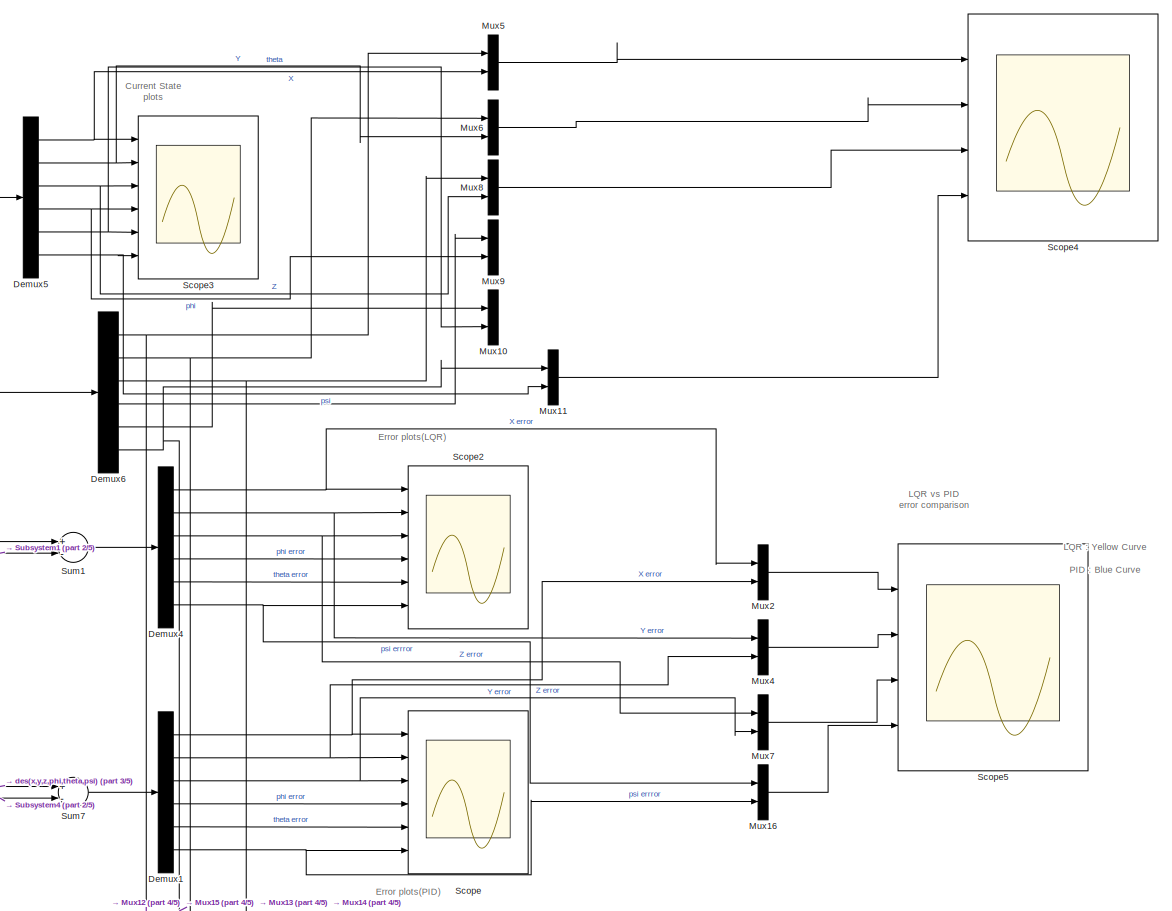
[diagram: root canvas - part 1/5, top right region]
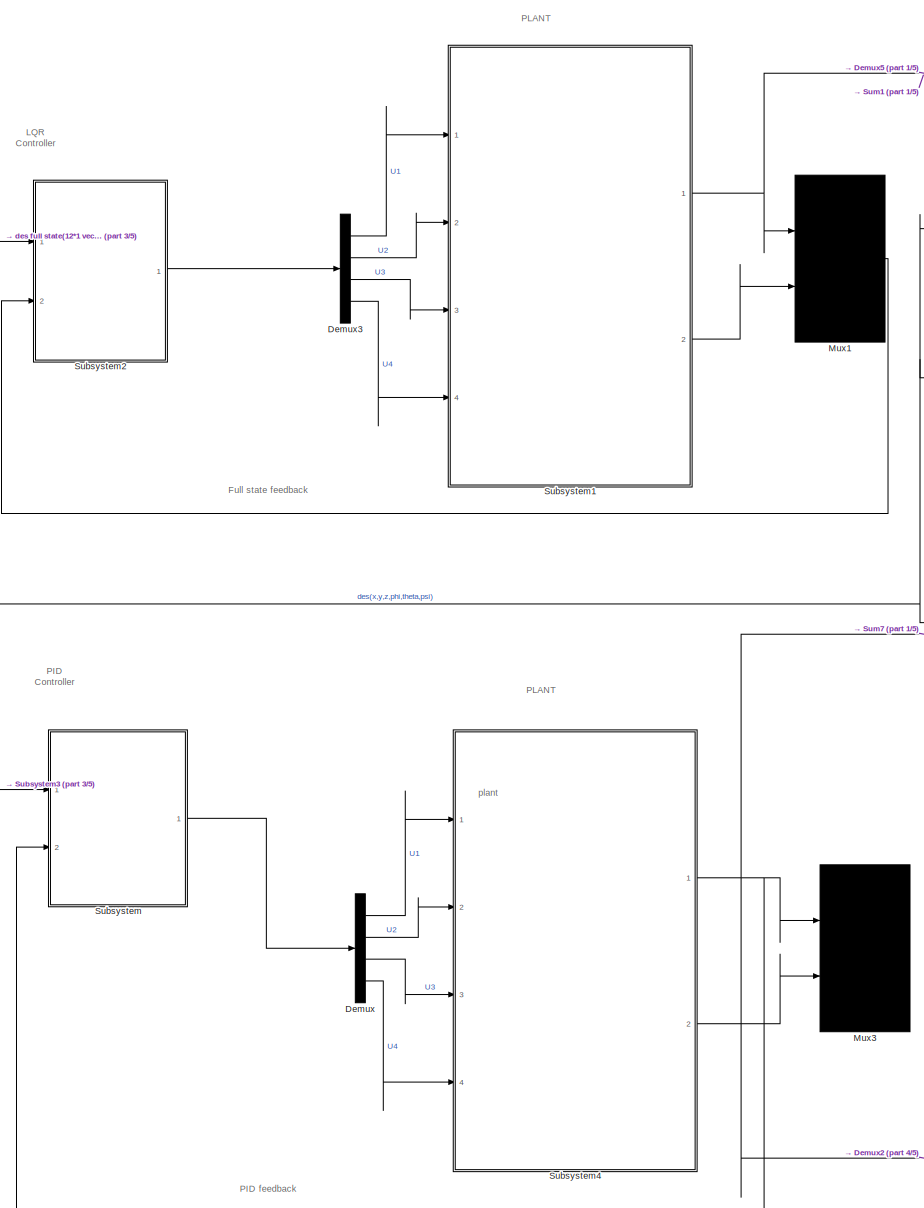
[diagram: root canvas - part 2/5, central region]
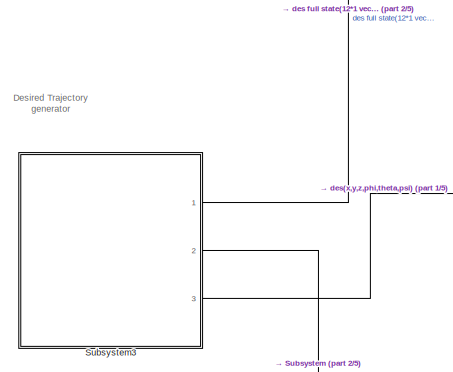
[diagram: root canvas - part 3/5, middle left region]
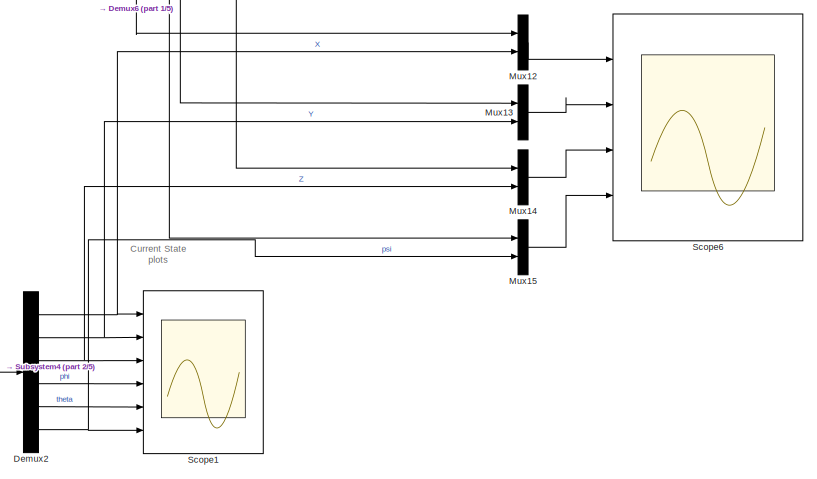
[diagram: root canvas - part 4/5, middle right region]
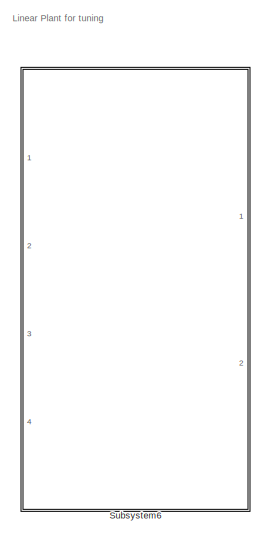
[diagram: root canvas - part 5/5, bottom center region]
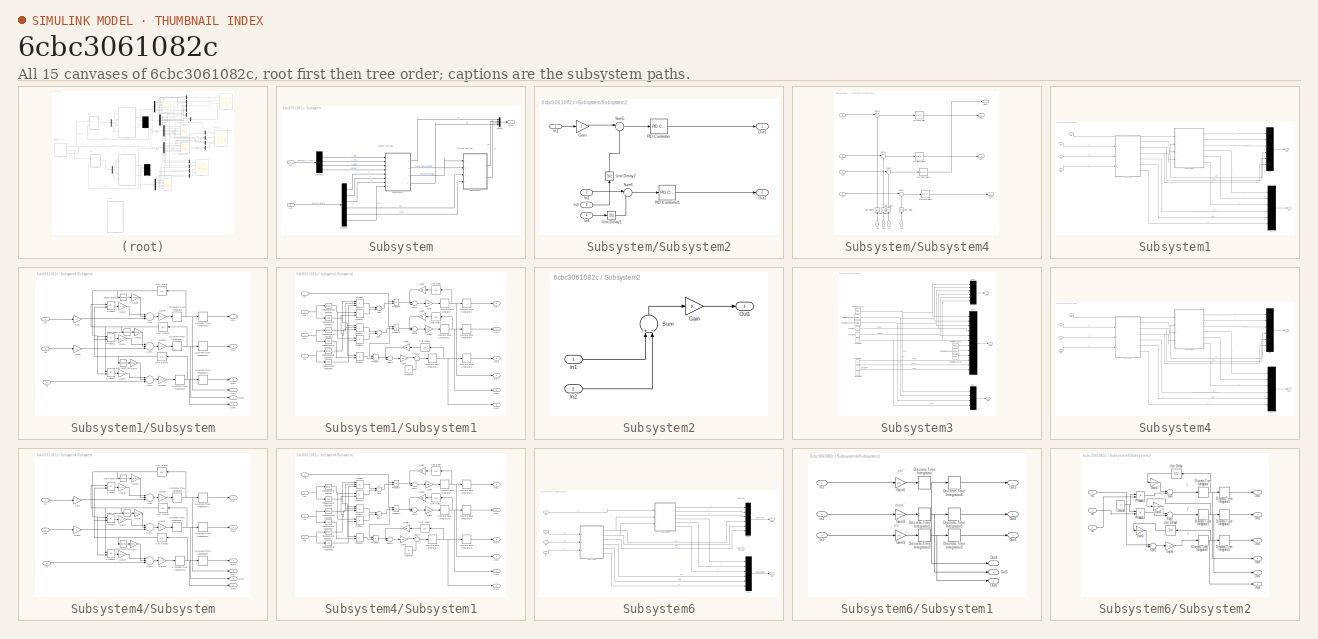
[diagram: thumbnail index - all 15 canvases of the model, root first then tree order]
MODEL slx_6cbc3061082c
KIND model
CONFIG AbsTol = auto
CONFIG EnableMultiTasking = off
CONFIG FixedStep = auto
CONFIG MaxStep = auto
CONFIG MinStep = auto
CONFIG RelTol = 1e-3
CONFIG SampleTimeConstraint = Unconstrained
CONFIG Solver = VariableStepAuto
CONFIG SolverName = VariableStepAuto
CONFIG StartTime = 0.0
CONFIG StopTime = 32
BLOCK [Demux] Demux
  DisplayOption = bar
  Ports = [1, 4]
BLOCK [Demux] Demux1
  DisplayOption = bar
  Outputs = 6
  Ports = [1, 6]
BLOCK [Demux] Demux2
  DisplayOption = bar
  Outputs = 6
  Ports = [1, 6]
BLOCK [Demux] Demux3
  DisplayOption = bar
  Ports = [1, 4]
BLOCK [Demux] Demux4
  DisplayOption = bar
  Outputs = 6
  Ports = [1, 6]
BLOCK [Demux] Demux5
  DisplayOption = bar
  Outputs = 6
  Ports = [1, 6]
BLOCK [Demux] Demux6
  DisplayOption = bar
  Outputs = 6
  Ports = [1, 6]
BLOCK [Mux] Mux1
  DisplayOption = signals
  Inputs = 2
  Ports = [2, 1]
BLOCK [Mux] Mux10
  DisplayOption = bar
  Inputs = 2
  Ports = [2, 1]
BLOCK [Mux] Mux11
  DisplayOption = bar
  Inputs = 2
  Ports = [2, 1]
BLOCK [Mux] Mux12
  DisplayOption = bar
  Inputs = 2
  Ports = [2, 1]
BLOCK [Mux] Mux13
  DisplayOption = bar
  Inputs = 2
  Ports = [2, 1]
BLOCK [Mux] Mux14
  DisplayOption = bar
  Inputs = 2
  Ports = [2, 1]
BLOCK [Mux] Mux15
  DisplayOption = bar
  Inputs = 2
  Ports = [2, 1]
BLOCK [Mux] Mux16
  DisplayOption = bar
  Inputs = 2
  Ports = [2, 1]
BLOCK [Mux] Mux2
  DisplayOption = bar
  Inputs = 2
  Ports = [2, 1]
BLOCK [Mux] Mux3
  DisplayOption = signals
  Inputs = 2
  Ports = [2, 1]
BLOCK [Mux] Mux4
  DisplayOption = bar
  Inputs = 2
  Ports = [2, 1]
BLOCK [Mux] Mux5
  DisplayOption = bar
  Inputs = 2
  Ports = [2, 1]
BLOCK [Mux] Mux6
  DisplayOption = bar
  Inputs = 2
  Ports = [2, 1]
BLOCK [Mux] Mux7
  DisplayOption = bar
  Inputs = 2
  Ports = [2, 1]
BLOCK [Mux] Mux8
  DisplayOption = bar
  Inputs = 2
  Ports = [2, 1]
BLOCK [Mux] Mux9
  DisplayOption = bar
  Inputs = 2
  Ports = [2, 1]
BLOCK [Scope] Scope
  Floating = off
  NumInputPorts = 6
  Ports = [6]
  ScopeSpecificationString = Simulink.scopes.TimeScopeBlockCfg('CurrentConfiguration', extmgr.ConfigurationSet(extmgr.Configuration('Core','General UI',true),extmgr.Configuration('Core','Source UI',true),extmgr.Configuration('Sources','WiredSimulink',true,'DataLoggingVariableName','ScopeData1','SampleTime','0.001'),extmgr.Configuration('Visuals','Time Domain',true,'SerializedDisplays',{struct('MinYLimReal','-0.02074','MaxYLim...<+4793ch>
BLOCK [Scope] Scope1
  Floating = off
  NumInputPorts = 6
  Ports = [6]
  ScopeSpecificationString = Simulink.scopes.TimeScopeBlockCfg('CurrentConfiguration', extmgr.ConfigurationSet(extmgr.Configuration('Core','General UI',true),extmgr.Configuration('Core','Source UI',true),extmgr.Configuration('Sources','WiredSimulink',true,'SampleTime','0.001'),extmgr.Configuration('Visuals','Time Domain',true,'SerializedDisplays',{struct('MinYLimReal','-0.50196','MaxYLimReal','4.51762','YLabelReal','','MinYLi...<+4717ch>
BLOCK [Scope] Scope2
  Floating = off
  NumInputPorts = 6
  Ports = [6]
  ScopeSpecificationString = Simulink.scopes.TimeScopeBlockCfg('CurrentConfiguration', extmgr.ConfigurationSet(extmgr.Configuration('Core','General UI',true),extmgr.Configuration('Core','Source UI',true),extmgr.Configuration('Sources','WiredSimulink',true,'DataLoggingVariableName','ScopeData2','SampleTime','0.001'),extmgr.Configuration('Visuals','Time Domain',true,'SerializedDisplays',{struct('MinYLimReal','-0.00171','MaxYLim...<+4795ch>
BLOCK [Scope] Scope3
  Floating = off
  NumInputPorts = 6
  Ports = [6]
  ScopeSpecificationString = Simulink.scopes.TimeScopeBlockCfg('CurrentConfiguration', extmgr.ConfigurationSet(extmgr.Configuration('Core','General UI',true),extmgr.Configuration('Core','Source UI',true),extmgr.Configuration('Sources','WiredSimulink',true,'SampleTime','0.001','DataLoggingVariableName','ScopeData3'),extmgr.Configuration('Visuals','Time Domain',true,'SerializedDisplays',{struct('MinYLimReal','-0.50003','MaxYLim...<+4758ch>
BLOCK [Scope] Scope4
  Floating = off
  NumInputPorts = 4
  Ports = [4]
  ScopeSpecificationString = Simulink.scopes.TimeScopeBlockCfg('CurrentConfiguration', extmgr.ConfigurationSet(extmgr.Configuration('Core','General UI',true),extmgr.Configuration('Core','Source UI',true),extmgr.Configuration('Sources','WiredSimulink',true,'DataLoggingVariableName','ScopeData1','SampleTime','0.001'),extmgr.Configuration('Visuals','Time Domain',true,'SerializedDisplays',{struct('MinYLimReal','-0.50003','MaxYLim...<+3441ch>
BLOCK [Scope] Scope5
  Floating = off
  NumInputPorts = 4
  Ports = [4]
  ScopeSpecificationString = Simulink.scopes.TimeScopeBlockCfg('CurrentConfiguration', extmgr.ConfigurationSet(extmgr.Configuration('Core','General UI',true),extmgr.Configuration('Core','Source UI',true),extmgr.Configuration('Sources','WiredSimulink',true,'DataLoggingVariableName','ScopeData5','SampleTime','0.001'),extmgr.Configuration('Visuals','Time Domain',true,'SerializedDisplays',{struct('MinYLimReal','-0.02074','MaxYLim...<+3495ch>
BLOCK [Scope] Scope6
  Floating = off
  NumInputPorts = 4
  Ports = [4]
  ScopeSpecificationString = Simulink.scopes.TimeScopeBlockCfg('CurrentConfiguration', extmgr.ConfigurationSet(extmgr.Configuration('Core','General UI',true),extmgr.Configuration('Core','Source UI',true),extmgr.Configuration('Sources','WiredSimulink',true,'DataLoggingVariableName','ScopeData2','SampleTime','0.001'),extmgr.Configuration('Visuals','Time Domain',true,'SerializedDisplays',{struct('MinYLimReal','-0.50196','MaxYLim...<+3439ch>
BLOCK [SubSystem] Subsystem
  Ports = [2, 1]
  RequestExecContextInheritance = off
BLOCK [Demux] Subsystem/Demux
  DisplayOption = bar
  Outputs = 6
  Ports = [1, 6]
BLOCK [Demux] Subsystem/Demux1
  DisplayOption = bar
  Ports = [1, 4]
BLOCK [Inport] Subsystem/In1
  IconDisplay = Port number
BLOCK [Inport] Subsystem/In2
  IconDisplay = Port number
  Port = 2
BLOCK [Mux] Subsystem/Mux2
  DisplayOption = bar
  Ports = [4, 1]
BLOCK [Outport] Subsystem/Out1
  IconDisplay = Port number
BLOCK [SubSystem] Subsystem/Subsystem2
  Ports = [4, 2]
  RequestExecContextInheritance = off
BLOCK [Gain] Subsystem/Subsystem2/Gain
  Gain = -1
  OutDataTypeStr = Inherit: Inherit via internal rule
  ParamDataTypeStr = Inherit: Inherit via internal rule
  SaturateOnIntegerOverflow = off
BLOCK [Inport] Subsystem/Subsystem2/In1
  IconDisplay = Port number
BLOCK [Inport] Subsystem/Subsystem2/In2
  IconDisplay = Port number
  Port = 2
BLOCK [Inport] Subsystem/Subsystem2/In3
  IconDisplay = Port number
  Port = 3
BLOCK [Inport] Subsystem/Subsystem2/In4
  IconDisplay = Port number
  Port = 4
BLOCK [Outport] Subsystem/Subsystem2/Out1
  IconDisplay = Port number
BLOCK [Outport] Subsystem/Subsystem2/Out2
  IconDisplay = Port number
  Port = 2
BLOCK [Reference] Subsystem/Subsystem2/PID Controller  REF=simulink/Continuous/PID Controller
  Ports = [1, 1]
  SourceBlock = simulink/Continuous/PID Controller
  SourceProductBaseCode = SL
  SourceProductName = Simulink
  SourceType = PID 1dof
BLOCK [Reference] Subsystem/Subsystem2/PID Controller1  REF=simulink/Continuous/PID Controller
  Ports = [1, 1]
  SourceBlock = simulink/Continuous/PID Controller
  SourceProductBaseCode = SL
  SourceProductName = Simulink
  SourceType = PID 1dof
BLOCK [Sum] Subsystem/Subsystem2/Sum5
  IconShape = round
  InputSameDT = off
  Inputs = |+-
  OutDataTypeStr = Inherit: Inherit via internal rule
  Ports = [2, 1]
  SaturateOnIntegerOverflow = off
BLOCK [Sum] Subsystem/Subsystem2/Sum6
  IconShape = round
  InputSameDT = off
  Inputs = |+-
  OutDataTypeStr = Inherit: Inherit via internal rule
  Ports = [2, 1]
  SaturateOnIntegerOverflow = off
BLOCK [UnitDelay] Subsystem/Subsystem2/Unit Delay1
  InputProcessing = Elements as channels (sample based)
  SampleTime = 0.001
BLOCK [UnitDelay] Subsystem/Subsystem2/Unit Delay2
  InputProcessing = Elements as channels (sample based)
  SampleTime = 0.001
BLOCK [SubSystem] Subsystem/Subsystem4
  Ports = [8, 4]
  RequestExecContextInheritance = off
  Tag = Position Controller
BLOCK [Inport] Subsystem/Subsystem4/In1
  IconDisplay = Port number
BLOCK [Inport] Subsystem/Subsystem4/In2
  IconDisplay = Port number
  Port = 2
BLOCK [Inport] Subsystem/Subsystem4/In3
  IconDisplay = Port number
  Port = 3
BLOCK [Inport] Subsystem/Subsystem4/In4
  IconDisplay = Port number
  Port = 4
BLOCK [Inport] Subsystem/Subsystem4/In5
  IconDisplay = Port number
  Port = 5
BLOCK [Inport] Subsystem/Subsystem4/In6
  IconDisplay = Port number
  Port = 6
BLOCK [Inport] Subsystem/Subsystem4/In7
  IconDisplay = Port number
  Port = 7
BLOCK [Inport] Subsystem/Subsystem4/In8
  IconDisplay = Port number
  Port = 8
BLOCK [Outport] Subsystem/Subsystem4/Out1
  IconDisplay = Port number
  Port = 2
BLOCK [Outport] Subsystem/Subsystem4/Out2
  IconDisplay = Port number
  Port = 3
BLOCK [Outport] Subsystem/Subsystem4/Out3
  IconDisplay = Port number
BLOCK [Outport] Subsystem/Subsystem4/Out4
  IconDisplay = Port number
  Port = 4
BLOCK [Reference] Subsystem/Subsystem4/PID Controller  REF=simulink/Continuous/PID Controller
  Ports = [1, 1]
  SourceBlock = simulink/Continuous/PID Controller
  SourceProductBaseCode = SL
  SourceProductName = Simulink
  SourceType = PID 1dof
BLOCK [Reference] Subsystem/Subsystem4/PID Controller1  REF=simulink/Continuous/PID Controller
  Ports = [1, 1]
  SourceBlock = simulink/Continuous/PID Controller
  SourceProductBaseCode = SL
  SourceProductName = Simulink
  SourceType = PID 1dof
BLOCK [Reference] Subsystem/Subsystem4/PID Controller2  REF=simulink/Continuous/PID Controller
  Ports = [1, 1]
  SourceBlock = simulink/Continuous/PID Controller
  SourceProductBaseCode = SL
  SourceProductName = Simulink
  SourceType = PID 1dof
BLOCK [Reference] Subsystem/Subsystem4/PID Controller3  REF=simulink/Continuous/PID Controller
  Ports = [1, 1]
  SourceBlock = simulink/Continuous/PID Controller
  SourceProductBaseCode = SL
  SourceProductName = Simulink
  SourceType = PID 1dof
BLOCK [Sum] Subsystem/Subsystem4/Sum1
  IconShape = round
  InputSameDT = off
  Inputs = |+-
  OutDataTypeStr = Inherit: Inherit via internal rule
  Ports = [2, 1]
  SaturateOnIntegerOverflow = off
BLOCK [Sum] Subsystem/Subsystem4/Sum2
  IconShape = round
  InputSameDT = off
  Inputs = |+-
  OutDataTypeStr = Inherit: Inherit via internal rule
  Ports = [2, 1]
  SaturateOnIntegerOverflow = off
BLOCK [Sum] Subsystem/Subsystem4/Sum3
  IconShape = round
  InputSameDT = off
  Inputs = |+-
  OutDataTypeStr = Inherit: Inherit via internal rule
  Ports = [2, 1]
  SaturateOnIntegerOverflow = off
BLOCK [Sum] Subsystem/Subsystem4/Sum4
  IconShape = round
  InputSameDT = off
  Inputs = |+-
  OutDataTypeStr = Inherit: Inherit via internal rule
  Ports = [2, 1]
  SaturateOnIntegerOverflow = off
BLOCK [UnitDelay] Subsystem/Subsystem4/Unit Delay
  InputProcessing = Elements as channels (sample based)
  SampleTime = 0.001
BLOCK [UnitDelay] Subsystem/Subsystem4/Unit Delay1
  InputProcessing = Elements as channels (sample based)
  SampleTime = 0.001
BLOCK [UnitDelay] Subsystem/Subsystem4/Unit Delay2
  InputProcessing = Elements as channels (sample based)
  SampleTime = 0.001
BLOCK [UnitDelay] Subsystem/Subsystem4/Unit Delay3
  InputProcessing = Elements as channels (sample based)
  SampleTime = 0.001
BLOCK [SubSystem] Subsystem1
  Ports = [4, 2]
  RequestExecContextInheritance = off
BLOCK [Inport] Subsystem1/In1
  IconDisplay = Port number
  Port = 2
BLOCK [Inport] Subsystem1/In2
  IconDisplay = Port number
  Port = 3
BLOCK [Inport] Subsystem1/In3
  IconDisplay = Port number
  Port = 4
BLOCK [Inport] Subsystem1/In5
  IconDisplay = Port number
BLOCK [Mux] Subsystem1/Mux
  DisplayOption = signals
  Inputs = 6
  Ports = [6, 1]
BLOCK [Mux] Subsystem1/Mux1
  DisplayOption = signals
  Inputs = 6
  Ports = [6, 1]
BLOCK [Outport] Subsystem1/Out1
  IconDisplay = Port number
BLOCK [Outport] Subsystem1/Out2
  IconDisplay = Port number
  Port = 2
BLOCK [SubSystem] Subsystem1/Subsystem
  Ports = [3, 6]
  RequestExecContextInheritance = off
BLOCK [DiscreteIntegrator] Subsystem1/Subsystem/Discrete-Time Integrator
  ICPrevOutput = DiscIntNeverNeededParam
  ICPrevScaledInput = DiscIntNeverNeededParam
  InitialConditionSetting = Auto
  Ports = [1, 1]
  SampleTime = -1
BLOCK [DiscreteIntegrator] Subsystem1/Subsystem/Discrete-Time Integrator1
  ICPrevOutput = DiscIntNeverNeededParam
  ICPrevScaledInput = DiscIntNeverNeededParam
  InitialConditionSetting = Auto
  Ports = [1, 1]
  SampleTime = -1
BLOCK [DiscreteIntegrator] Subsystem1/Subsystem/Discrete-Time Integrator2
  ICPrevOutput = DiscIntNeverNeededParam
  ICPrevScaledInput = DiscIntNeverNeededParam
  InitialConditionSetting = Auto
  Ports = [1, 1]
  SampleTime = -1
BLOCK [DiscreteIntegrator] Subsystem1/Subsystem/Discrete-Time Integrator3
  ICPrevOutput = DiscIntNeverNeededParam
  ICPrevScaledInput = DiscIntNeverNeededParam
  InitialConditionSetting = Auto
  Ports = [1, 1]
  SampleTime = -1
BLOCK [DiscreteIntegrator] Subsystem1/Subsystem/Discrete-Time Integrator4
  ICPrevOutput = DiscIntNeverNeededParam
  ICPrevScaledInput = DiscIntNeverNeededParam
  InitialConditionSetting = Auto
  Ports = [1, 1]
  SampleTime = -1
BLOCK [DiscreteIntegrator] Subsystem1/Subsystem/Discrete-Time Integrator5
  ICPrevOutput = DiscIntNeverNeededParam
  ICPrevScaledInput = DiscIntNeverNeededParam
  InitialConditionSetting = Auto
  Ports = [1, 1]
  SampleTime = -1
BLOCK [Gain] Subsystem1/Subsystem/Gain
  Gain = d
  OutDataTypeStr = Inherit: Inherit via internal rule
  ParamDataTypeStr = Inherit: Inherit via internal rule
  SaturateOnIntegerOverflow = off
BLOCK [Gain] Subsystem1/Subsystem/Gain1
  Gain = d
  OutDataTypeStr = Inherit: Inherit via internal rule
  ParamDataTypeStr = Inherit: Inherit via internal rule
  SaturateOnIntegerOverflow = off
BLOCK [Gain] Subsystem1/Subsystem/Gain10
  Gain = 1/Iz
  OutDataTypeStr = Inherit: Inherit via internal rule
  ParamDataTypeStr = Inherit: Inherit via internal rule
  SaturateOnIntegerOverflow = off
BLOCK [Gain] Subsystem1/Subsystem/Gain2
  Gain = Iy-Iz
  OutDataTypeStr = Inherit: Inherit via internal rule
  ParamDataTypeStr = Inherit: Inherit via internal rule
  SaturateOnIntegerOverflow = off
BLOCK [Gain] Subsystem1/Subsystem/Gain3
  Gain = Iz-Ix
  OutDataTypeStr = Inherit: Inherit via internal rule
  ParamDataTypeStr = Inherit: Inherit via internal rule
  SaturateOnIntegerOverflow = off
BLOCK [Gain] Subsystem1/Subsystem/Gain4
  Gain = Ix-Iy
  OutDataTypeStr = Inherit: Inherit via internal rule
  ParamDataTypeStr = Inherit: Inherit via internal rule
  SaturateOnIntegerOverflow = off
BLOCK [Gain] Subsystem1/Subsystem/Gain5
  Gain = kfax
  OutDataTypeStr = Inherit: Inherit via internal rule
  ParamDataTypeStr = Inherit: Inherit via internal rule
  SaturateOnIntegerOverflow = off
BLOCK [Gain] Subsystem1/Subsystem/Gain6
  Gain = kfay
  OutDataTypeStr = Inherit: Inherit via internal rule
  ParamDataTypeStr = Inherit: Inherit via internal rule
  SaturateOnIntegerOverflow = off
BLOCK [Gain] Subsystem1/Subsystem/Gain7
  Gain = kfaz
  OutDataTypeStr = Inherit: Inherit via internal rule
  ParamDataTypeStr = Inherit: Inherit via internal rule
  SaturateOnIntegerOverflow = off
BLOCK [Gain] Subsystem1/Subsystem/Gain8
  Gain = 1/Ix
  OutDataTypeStr = Inherit: Inherit via internal rule
  ParamDataTypeStr = Inherit: Inherit via internal rule
  SaturateOnIntegerOverflow = off
BLOCK [Gain] Subsystem1/Subsystem/Gain9
  Gain = 1/Iy
  OutDataTypeStr = Inherit: Inherit via internal rule
  ParamDataTypeStr = Inherit: Inherit via internal rule
  SaturateOnIntegerOverflow = off
BLOCK [Inport] Subsystem1/Subsystem/In1
  IconDisplay = Port number
BLOCK [Inport] Subsystem1/Subsystem/In2
  IconDisplay = Port number
  Port = 2
BLOCK [Inport] Subsystem1/Subsystem/In3
  IconDisplay = Port number
  Port = 3
BLOCK [Math] Subsystem1/Subsystem/Math Function
  Operator = square
  Ports = [1, 1]
BLOCK [Math] Subsystem1/Subsystem/Math Function1
  Operator = square
  Ports = [1, 1]
BLOCK [Math] Subsystem1/Subsystem/Math Function2
  Operator = square
  Ports = [1, 1]
BLOCK [Outport] Subsystem1/Subsystem/Out1
  IconDisplay = Port number
BLOCK [Outport] Subsystem1/Subsystem/Out2
  IconDisplay = Port number
  Port = 2
BLOCK [Outport] Subsystem1/Subsystem/Out3
  IconDisplay = Port number
  Port = 3
BLOCK [Outport] Subsystem1/Subsystem/Out4
  IconDisplay = Port number
  Port = 4
BLOCK [Outport] Subsystem1/Subsystem/Out5
  IconDisplay = Port number
  Port = 5
BLOCK [Outport] Subsystem1/Subsystem/Out6
  IconDisplay = Port number
  Port = 6
BLOCK [Product] Subsystem1/Subsystem/Product
  InputSameDT = off
  OutDataTypeStr = Inherit: Inherit via internal rule
  Ports = [2, 1]
  RndMeth = Floor
  SaturateOnIntegerOverflow = off
BLOCK [Product] Subsystem1/Subsystem/Product1
  InputSameDT = off
  OutDataTypeStr = Inherit: Inherit via internal rule
  Ports = [2, 1]
  RndMeth = Floor
  SaturateOnIntegerOverflow = off
BLOCK [Product] Subsystem1/Subsystem/Product2
  InputSameDT = off
  OutDataTypeStr = Inherit: Inherit via internal rule
  Ports = [2, 1]
  RndMeth = Floor
  SaturateOnIntegerOverflow = off
BLOCK [Sum] Subsystem1/Subsystem/Sum
  InputSameDT = off
  Inputs = +-+
  OutDataTypeStr = Inherit: Inherit via internal rule
  Ports = [3, 1]
  SaturateOnIntegerOverflow = off
BLOCK [Sum] Subsystem1/Subsystem/Sum1
  InputSameDT = off
  Inputs = +-+
  OutDataTypeStr = Inherit: Inherit via internal rule
  Ports = [3, 1]
  SaturateOnIntegerOverflow = off
BLOCK [Sum] Subsystem1/Subsystem/Sum2
  InputSameDT = off
  Inputs = +-+
  OutDataTypeStr = Inherit: Inherit via internal rule
  Ports = [3, 1]
  SaturateOnIntegerOverflow = off
BLOCK [UnitDelay] Subsystem1/Subsystem/Unit Delay
  InputProcessing = Elements as channels (sample based)
  SampleTime = 0.001
BLOCK [UnitDelay] Subsystem1/Subsystem/Unit Delay1
  InputProcessing = Elements as channels (sample based)
  SampleTime = 0.001
BLOCK [UnitDelay] Subsystem1/Subsystem/Unit Delay2
  InputProcessing = Elements as channels (sample based)
  SampleTime = 0.001
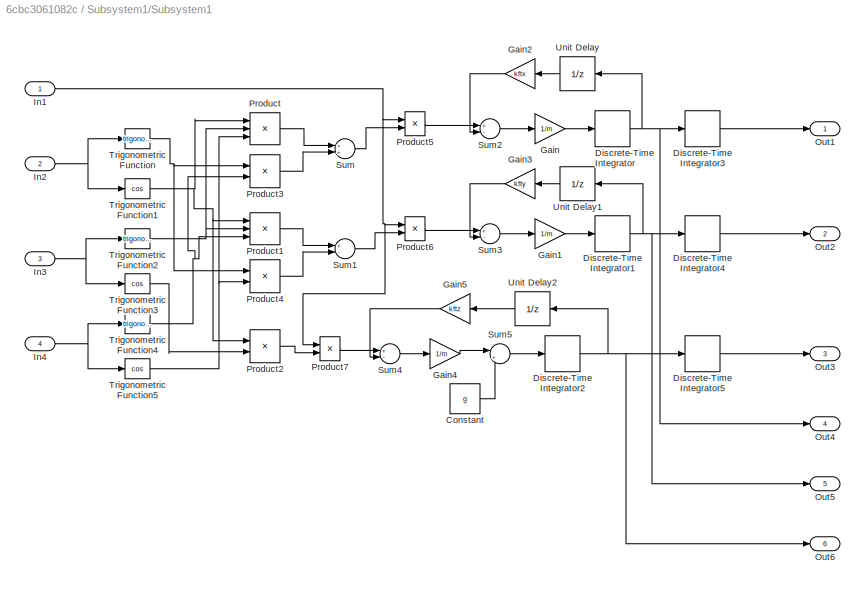
BLOCK [SubSystem] Subsystem1/Subsystem1
  Ports = [4, 6]
  RequestExecContextInheritance = off
BLOCK [Constant] Subsystem1/Subsystem1/Constant
  Value = g
BLOCK [DiscreteIntegrator] Subsystem1/Subsystem1/Discrete-Time Integrator
  ICPrevOutput = DiscIntNeverNeededParam
  ICPrevScaledInput = DiscIntNeverNeededParam
  InitialConditionSetting = Auto
  Ports = [1, 1]
  SampleTime = 0.001
BLOCK [DiscreteIntegrator] Subsystem1/Subsystem1/Discrete-Time Integrator1
  ICPrevOutput = DiscIntNeverNeededParam
  ICPrevScaledInput = DiscIntNeverNeededParam
  InitialConditionSetting = Auto
  Ports = [1, 1]
  SampleTime = 0.001
BLOCK [DiscreteIntegrator] Subsystem1/Subsystem1/Discrete-Time Integrator2
  ICPrevOutput = DiscIntNeverNeededParam
  ICPrevScaledInput = DiscIntNeverNeededParam
  InitialConditionSetting = Auto
  Ports = [1, 1]
  SampleTime = 0.001
BLOCK [DiscreteIntegrator] Subsystem1/Subsystem1/Discrete-Time Integrator3
  ICPrevOutput = DiscIntNeverNeededParam
  ICPrevScaledInput = DiscIntNeverNeededParam
  InitialConditionSetting = Auto
  Ports = [1, 1]
  SampleTime = 0.001
BLOCK [DiscreteIntegrator] Subsystem1/Subsystem1/Discrete-Time Integrator4
  ICPrevOutput = DiscIntNeverNeededParam
  ICPrevScaledInput = DiscIntNeverNeededParam
  InitialConditionSetting = Auto
  Ports = [1, 1]
  SampleTime = 0.001
BLOCK [DiscreteIntegrator] Subsystem1/Subsystem1/Discrete-Time Integrator5
  ICPrevOutput = DiscIntNeverNeededParam
  ICPrevScaledInput = DiscIntNeverNeededParam
  InitialConditionSetting = Auto
  Ports = [1, 1]
  SampleTime = 0.001
BLOCK [Gain] Subsystem1/Subsystem1/Gain
  Gain = 1/m
  OutDataTypeStr = Inherit: Inherit via internal rule
  ParamDataTypeStr = Inherit: Inherit via internal rule
  SaturateOnIntegerOverflow = off
BLOCK [Gain] Subsystem1/Subsystem1/Gain1
  Gain = 1/m
  OutDataTypeStr = Inherit: Inherit via internal rule
  ParamDataTypeStr = Inherit: Inherit via internal rule
  SaturateOnIntegerOverflow = off
BLOCK [Gain] Subsystem1/Subsystem1/Gain2
  Gain = kftx
  OutDataTypeStr = Inherit: Inherit via internal rule
  ParamDataTypeStr = Inherit: Inherit via internal rule
  SaturateOnIntegerOverflow = off
BLOCK [Gain] Subsystem1/Subsystem1/Gain3
  Gain = kfty
  OutDataTypeStr = Inherit: Inherit via internal rule
  ParamDataTypeStr = Inherit: Inherit via internal rule
  SaturateOnIntegerOverflow = off
BLOCK [Gain] Subsystem1/Subsystem1/Gain4
  Gain = 1/m
  OutDataTypeStr = Inherit: Inherit via internal rule
  ParamDataTypeStr = Inherit: Inherit via internal rule
  SaturateOnIntegerOverflow = off
BLOCK [Gain] Subsystem1/Subsystem1/Gain5
  Gain = kftz
  OutDataTypeStr = Inherit: Inherit via internal rule
  ParamDataTypeStr = Inherit: Inherit via internal rule
  SaturateOnIntegerOverflow = off
BLOCK [Inport] Subsystem1/Subsystem1/In1
  IconDisplay = Port number
BLOCK [Inport] Subsystem1/Subsystem1/In2
  IconDisplay = Port number
  Port = 2
BLOCK [Inport] Subsystem1/Subsystem1/In3
  IconDisplay = Port number
  Port = 3
BLOCK [Inport] Subsystem1/Subsystem1/In4
  IconDisplay = Port number
  Port = 4
BLOCK [Outport] Subsystem1/Subsystem1/Out1
  IconDisplay = Port number
BLOCK [Outport] Subsystem1/Subsystem1/Out2
  IconDisplay = Port number
  Port = 2
BLOCK [Outport] Subsystem1/Subsystem1/Out3
  IconDisplay = Port number
  Port = 3
BLOCK [Outport] Subsystem1/Subsystem1/Out4
  IconDisplay = Port number
  Port = 4
BLOCK [Outport] Subsystem1/Subsystem1/Out5
  IconDisplay = Port number
  Port = 5
BLOCK [Outport] Subsystem1/Subsystem1/Out6
  IconDisplay = Port number
  Port = 6
BLOCK [Product] Subsystem1/Subsystem1/Product
  InputSameDT = off
  Inputs = 3
  OutDataTypeStr = Inherit: Inherit via internal rule
  Ports = [3, 1]
  RndMeth = Floor
  SaturateOnIntegerOverflow = off
BLOCK [Product] Subsystem1/Subsystem1/Product1
  InputSameDT = off
  Inputs = 3
  OutDataTypeStr = Inherit: Inherit via internal rule
  Ports = [3, 1]
  RndMeth = Floor
  SaturateOnIntegerOverflow = off
BLOCK [Product] Subsystem1/Subsystem1/Product2
  InputSameDT = off
  OutDataTypeStr = Inherit: Inherit via internal rule
  Ports = [2, 1]
  RndMeth = Floor
  SaturateOnIntegerOverflow = off
BLOCK [Product] Subsystem1/Subsystem1/Product3
  InputSameDT = off
  OutDataTypeStr = Inherit: Inherit via internal rule
  Ports = [2, 1]
  RndMeth = Floor
  SaturateOnIntegerOverflow = off
BLOCK [Product] Subsystem1/Subsystem1/Product4
  InputSameDT = off
  OutDataTypeStr = Inherit: Inherit via internal rule
  Ports = [2, 1]
  RndMeth = Floor
  SaturateOnIntegerOverflow = off
BLOCK [Product] Subsystem1/Subsystem1/Product5
  InputSameDT = off
  OutDataTypeStr = Inherit: Inherit via internal rule
  Ports = [2, 1]
  RndMeth = Floor
  SaturateOnIntegerOverflow = off
BLOCK [Product] Subsystem1/Subsystem1/Product6
  InputSameDT = off
  OutDataTypeStr = Inherit: Inherit via internal rule
  Ports = [2, 1]
  RndMeth = Floor
  SaturateOnIntegerOverflow = off
BLOCK [Product] Subsystem1/Subsystem1/Product7
  InputSameDT = off
  OutDataTypeStr = Inherit: Inherit via internal rule
  Ports = [2, 1]
  RndMeth = Floor
  SaturateOnIntegerOverflow = off
BLOCK [Sum] Subsystem1/Subsystem1/Sum
  InputSameDT = off
  OutDataTypeStr = Inherit: Inherit via internal rule
  Ports = [2, 1]
  SaturateOnIntegerOverflow = off
BLOCK [Sum] Subsystem1/Subsystem1/Sum1
  InputSameDT = off
  Inputs = +-
  OutDataTypeStr = Inherit: Inherit via internal rule
  Ports = [2, 1]
  SaturateOnIntegerOverflow = off
BLOCK [Sum] Subsystem1/Subsystem1/Sum2
  InputSameDT = off
  Inputs = +-
  OutDataTypeStr = Inherit: Inherit via internal rule
  Ports = [2, 1]
  SaturateOnIntegerOverflow = off
BLOCK [Sum] Subsystem1/Subsystem1/Sum3
  InputSameDT = off
  Inputs = +-
  OutDataTypeStr = Inherit: Inherit via internal rule
  Ports = [2, 1]
  SaturateOnIntegerOverflow = off
BLOCK [Sum] Subsystem1/Subsystem1/Sum4
  InputSameDT = off
  Inputs = +-
  OutDataTypeStr = Inherit: Inherit via internal rule
  Ports = [2, 1]
  SaturateOnIntegerOverflow = off
BLOCK [Sum] Subsystem1/Subsystem1/Sum5
  IconShape = round
  InputSameDT = off
  Inputs = |+-
  OutDataTypeStr = Inherit: Inherit via internal rule
  Ports = [2, 1]
  SaturateOnIntegerOverflow = off
BLOCK [Trigonometry] Subsystem1/Subsystem1/Trigonometric Function
  Ports = [1, 1]
BLOCK [Trigonometry] Subsystem1/Subsystem1/Trigonometric Function1
  Operator = cos
  Ports = [1, 1]
BLOCK [Trigonometry] Subsystem1/Subsystem1/Trigonometric Function2
  Ports = [1, 1]
BLOCK [Trigonometry] Subsystem1/Subsystem1/Trigonometric Function3
  Operator = cos
  Ports = [1, 1]
BLOCK [Trigonometry] Subsystem1/Subsystem1/Trigonometric Function4
  Ports = [1, 1]
BLOCK [Trigonometry] Subsystem1/Subsystem1/Trigonometric Function5
  Operator = cos
  Ports = [1, 1]
BLOCK [UnitDelay] Subsystem1/Subsystem1/Unit Delay
  InputProcessing = Elements as channels (sample based)
  SampleTime = 0.001
BLOCK [UnitDelay] Subsystem1/Subsystem1/Unit Delay1
  InputProcessing = Elements as channels (sample based)
  SampleTime = 0.001
BLOCK [UnitDelay] Subsystem1/Subsystem1/Unit Delay2
  InputProcessing = Elements as channels (sample based)
  SampleTime = 0.001
BLOCK [SubSystem] Subsystem2
  Ports = [2, 1]
  RequestExecContextInheritance = off
BLOCK [Gain] Subsystem2/Gain
  Gain = K
  Multiplication = Matrix(K*u)
  OutDataTypeStr = Inherit: Inherit via internal rule
  ParamDataTypeStr = Inherit: Inherit via internal rule
  SaturateOnIntegerOverflow = off
BLOCK [Inport] Subsystem2/In1
  IconDisplay = Port number
BLOCK [Inport] Subsystem2/In2
  IconDisplay = Port number
  Port = 2
BLOCK [Outport] Subsystem2/Out1
  IconDisplay = Port number
BLOCK [Sum] Subsystem2/Sum
  InputSameDT = off
  Inputs = +-
  OutDataTypeStr = Inherit: Inherit via internal rule
  Ports = [2, 1]
  SaturateOnIntegerOverflow = off
BLOCK [SubSystem] Subsystem3
  Ports = [0, 3]
  RequestExecContextInheritance = off
BLOCK [Constant] Subsystem3/Constant
  Value = 0
BLOCK [Constant] Subsystem3/Constant1
  Value = 0
BLOCK [Constant] Subsystem3/Constant2
  Value = 0
BLOCK [Constant] Subsystem3/Constant3
  Value = 0
BLOCK [Constant] Subsystem3/Constant4
  Value = 0
BLOCK [Constant] Subsystem3/Constant5
  Value = 0
BLOCK [FromWorkspace] Subsystem3/From Workspace1
  SampleTime = 0.001
  VariableName = simin
  ZeroCross = on
BLOCK [FromWorkspace] Subsystem3/From Workspace2
  SampleTime = 0.001
  VariableName = simin1
  ZeroCross = on
BLOCK [FromWorkspace] Subsystem3/From Workspace3
  SampleTime = 0.001
  VariableName = simin2
  ZeroCross = on
BLOCK [FromWorkspace] Subsystem3/From Workspace4
  SampleTime = 0.001
  VariableName = simin3
  ZeroCross = on
BLOCK [FromWorkspace] Subsystem3/From Workspace5
  SampleTime = 0.001
  VariableName = simin4
  ZeroCross = on
BLOCK [FromWorkspace] Subsystem3/From Workspace6
  SampleTime = 0.001
  VariableName = simin5
  ZeroCross = on
BLOCK [Mux] Subsystem3/Mux1
  DisplayOption = signals
  Ports = [4, 1]
BLOCK [Mux] Subsystem3/Mux2
  DisplayOption = signals
  Inputs = 6
  Ports = [6, 1]
BLOCK [Mux] Subsystem3/Mux4
  DisplayOption = signals
  Inputs = 12
  Ports = [12, 1]
BLOCK [Outport] Subsystem3/Out1
  IconDisplay = Port number
BLOCK [Outport] Subsystem3/Out2
  IconDisplay = Port number
  Port = 2
BLOCK [Outport] Subsystem3/Out3
  IconDisplay = Port number
  Port = 3
BLOCK [SubSystem] Subsystem4
  Ports = [4, 2]
  RequestExecContextInheritance = off
BLOCK [Inport] Subsystem4/In1
  IconDisplay = Port number
  Port = 2
BLOCK [Inport] Subsystem4/In2
  IconDisplay = Port number
  Port = 3
BLOCK [Inport] Subsystem4/In3
  IconDisplay = Port number
  Port = 4
BLOCK [Inport] Subsystem4/In5
  IconDisplay = Port number
BLOCK [Mux] Subsystem4/Mux
  DisplayOption = signals
  Inputs = 6
  Ports = [6, 1]
BLOCK [Mux] Subsystem4/Mux1
  DisplayOption = signals
  Inputs = 6
  Ports = [6, 1]
BLOCK [Outport] Subsystem4/Out1
  IconDisplay = Port number
BLOCK [Outport] Subsystem4/Out2
  IconDisplay = Port number
  Port = 2
BLOCK [SubSystem] Subsystem4/Subsystem
  Ports = [3, 6]
  RequestExecContextInheritance = off
BLOCK [DiscreteIntegrator] Subsystem4/Subsystem/Discrete-Time Integrator
  ICPrevOutput = DiscIntNeverNeededParam
  ICPrevScaledInput = DiscIntNeverNeededParam
  InitialConditionSetting = Auto
  Ports = [1, 1]
  SampleTime = -1
BLOCK [DiscreteIntegrator] Subsystem4/Subsystem/Discrete-Time Integrator1
  ICPrevOutput = DiscIntNeverNeededParam
  ICPrevScaledInput = DiscIntNeverNeededParam
  InitialConditionSetting = Auto
  Ports = [1, 1]
  SampleTime = -1
BLOCK [DiscreteIntegrator] Subsystem4/Subsystem/Discrete-Time Integrator2
  ICPrevOutput = DiscIntNeverNeededParam
  ICPrevScaledInput = DiscIntNeverNeededParam
  InitialConditionSetting = Auto
  Ports = [1, 1]
  SampleTime = -1
BLOCK [DiscreteIntegrator] Subsystem4/Subsystem/Discrete-Time Integrator3
  ICPrevOutput = DiscIntNeverNeededParam
  ICPrevScaledInput = DiscIntNeverNeededParam
  InitialConditionSetting = Auto
  Ports = [1, 1]
  SampleTime = -1
BLOCK [DiscreteIntegrator] Subsystem4/Subsystem/Discrete-Time Integrator4
  ICPrevOutput = DiscIntNeverNeededParam
  ICPrevScaledInput = DiscIntNeverNeededParam
  InitialConditionSetting = Auto
  Ports = [1, 1]
  SampleTime = -1
BLOCK [DiscreteIntegrator] Subsystem4/Subsystem/Discrete-Time Integrator5
  ICPrevOutput = DiscIntNeverNeededParam
  ICPrevScaledInput = DiscIntNeverNeededParam
  InitialConditionSetting = Auto
  Ports = [1, 1]
  SampleTime = -1
BLOCK [Gain] Subsystem4/Subsystem/Gain
  Gain = d
  OutDataTypeStr = Inherit: Inherit via internal rule
  ParamDataTypeStr = Inherit: Inherit via internal rule
  SaturateOnIntegerOverflow = off
BLOCK [Gain] Subsystem4/Subsystem/Gain1
  Gain = d
  OutDataTypeStr = Inherit: Inherit via internal rule
  ParamDataTypeStr = Inherit: Inherit via internal rule
  SaturateOnIntegerOverflow = off
BLOCK [Gain] Subsystem4/Subsystem/Gain10
  Gain = 1/Iz
  OutDataTypeStr = Inherit: Inherit via internal rule
  ParamDataTypeStr = Inherit: Inherit via internal rule
  SaturateOnIntegerOverflow = off
BLOCK [Gain] Subsystem4/Subsystem/Gain2
  Gain = Iy-Iz
  OutDataTypeStr = Inherit: Inherit via internal rule
  ParamDataTypeStr = Inherit: Inherit via internal rule
  SaturateOnIntegerOverflow = off
BLOCK [Gain] Subsystem4/Subsystem/Gain3
  Gain = Iz-Ix
  OutDataTypeStr = Inherit: Inherit via internal rule
  ParamDataTypeStr = Inherit: Inherit via internal rule
  SaturateOnIntegerOverflow = off
BLOCK [Gain] Subsystem4/Subsystem/Gain4
  Gain = Ix-Iy
  OutDataTypeStr = Inherit: Inherit via internal rule
  ParamDataTypeStr = Inherit: Inherit via internal rule
  SaturateOnIntegerOverflow = off
BLOCK [Gain] Subsystem4/Subsystem/Gain5
  Gain = kfax
  OutDataTypeStr = Inherit: Inherit via internal rule
  ParamDataTypeStr = Inherit: Inherit via internal rule
  SaturateOnIntegerOverflow = off
BLOCK [Gain] Subsystem4/Subsystem/Gain6
  Gain = kfay
  OutDataTypeStr = Inherit: Inherit via internal rule
  ParamDataTypeStr = Inherit: Inherit via internal rule
  SaturateOnIntegerOverflow = off
BLOCK [Gain] Subsystem4/Subsystem/Gain7
  Gain = kfaz
  OutDataTypeStr = Inherit: Inherit via internal rule
  ParamDataTypeStr = Inherit: Inherit via internal rule
  SaturateOnIntegerOverflow = off
BLOCK [Gain] Subsystem4/Subsystem/Gain8
  Gain = 1/Ix
  OutDataTypeStr = Inherit: Inherit via internal rule
  ParamDataTypeStr = Inherit: Inherit via internal rule
  SaturateOnIntegerOverflow = off
BLOCK [Gain] Subsystem4/Subsystem/Gain9
  Gain = 1/Iy
  OutDataTypeStr = Inherit: Inherit via internal rule
  ParamDataTypeStr = Inherit: Inherit via internal rule
  SaturateOnIntegerOverflow = off
BLOCK [Inport] Subsystem4/Subsystem/In1
  IconDisplay = Port number
BLOCK [Inport] Subsystem4/Subsystem/In2
  IconDisplay = Port number
  Port = 2
BLOCK [Inport] Subsystem4/Subsystem/In3
  IconDisplay = Port number
  Port = 3
BLOCK [Math] Subsystem4/Subsystem/Math Function
  Operator = square
  Ports = [1, 1]
BLOCK [Math] Subsystem4/Subsystem/Math Function1
  Operator = square
  Ports = [1, 1]
BLOCK [Math] Subsystem4/Subsystem/Math Function2
  Operator = square
  Ports = [1, 1]
BLOCK [Outport] Subsystem4/Subsystem/Out1
  IconDisplay = Port number
BLOCK [Outport] Subsystem4/Subsystem/Out2
  IconDisplay = Port number
  Port = 2
BLOCK [Outport] Subsystem4/Subsystem/Out3
  IconDisplay = Port number
  Port = 3
BLOCK [Outport] Subsystem4/Subsystem/Out4
  IconDisplay = Port number
  Port = 4
BLOCK [Outport] Subsystem4/Subsystem/Out5
  IconDisplay = Port number
  Port = 5
BLOCK [Outport] Subsystem4/Subsystem/Out6
  IconDisplay = Port number
  Port = 6
BLOCK [Product] Subsystem4/Subsystem/Product
  InputSameDT = off
  OutDataTypeStr = Inherit: Inherit via internal rule
  Ports = [2, 1]
  RndMeth = Floor
  SaturateOnIntegerOverflow = off
BLOCK [Product] Subsystem4/Subsystem/Product1
  InputSameDT = off
  OutDataTypeStr = Inherit: Inherit via internal rule
  Ports = [2, 1]
  RndMeth = Floor
  SaturateOnIntegerOverflow = off
BLOCK [Product] Subsystem4/Subsystem/Product2
  InputSameDT = off
  OutDataTypeStr = Inherit: Inherit via internal rule
  Ports = [2, 1]
  RndMeth = Floor
  SaturateOnIntegerOverflow = off
BLOCK [Sum] Subsystem4/Subsystem/Sum
  InputSameDT = off
  Inputs = +-+
  OutDataTypeStr = Inherit: Inherit via internal rule
  Ports = [3, 1]
  SaturateOnIntegerOverflow = off
BLOCK [Sum] Subsystem4/Subsystem/Sum1
  InputSameDT = off
  Inputs = +-+
  OutDataTypeStr = Inherit: Inherit via internal rule
  Ports = [3, 1]
  SaturateOnIntegerOverflow = off
BLOCK [Sum] Subsystem4/Subsystem/Sum2
  InputSameDT = off
  Inputs = +-+
  OutDataTypeStr = Inherit: Inherit via internal rule
  Ports = [3, 1]
  SaturateOnIntegerOverflow = off
BLOCK [UnitDelay] Subsystem4/Subsystem/Unit Delay
  InputProcessing = Elements as channels (sample based)
  SampleTime = 0.001
BLOCK [UnitDelay] Subsystem4/Subsystem/Unit Delay1
  InputProcessing = Elements as channels (sample based)
  SampleTime = 0.001
BLOCK [UnitDelay] Subsystem4/Subsystem/Unit Delay2
  InputProcessing = Elements as channels (sample based)
  SampleTime = 0.001
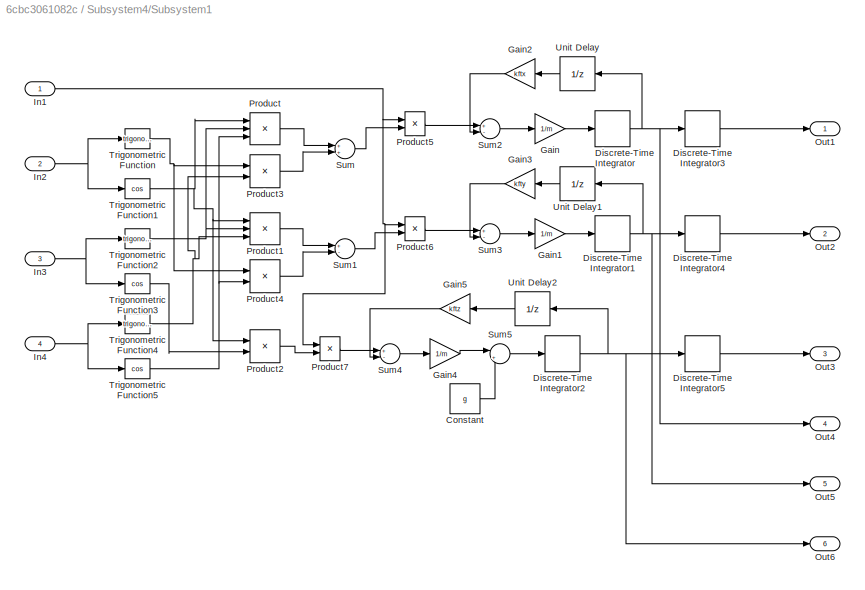
BLOCK [SubSystem] Subsystem4/Subsystem1
  Ports = [4, 6]
  RequestExecContextInheritance = off
BLOCK [Constant] Subsystem4/Subsystem1/Constant
  Value = g
BLOCK [DiscreteIntegrator] Subsystem4/Subsystem1/Discrete-Time Integrator
  ICPrevOutput = DiscIntNeverNeededParam
  ICPrevScaledInput = DiscIntNeverNeededParam
  InitialConditionSetting = Auto
  Ports = [1, 1]
  SampleTime = 0.001
BLOCK [DiscreteIntegrator] Subsystem4/Subsystem1/Discrete-Time Integrator1
  ICPrevOutput = DiscIntNeverNeededParam
  ICPrevScaledInput = DiscIntNeverNeededParam
  InitialConditionSetting = Auto
  Ports = [1, 1]
  SampleTime = 0.001
BLOCK [DiscreteIntegrator] Subsystem4/Subsystem1/Discrete-Time Integrator2
  ICPrevOutput = DiscIntNeverNeededParam
  ICPrevScaledInput = DiscIntNeverNeededParam
  InitialConditionSetting = Auto
  Ports = [1, 1]
  SampleTime = 0.001
BLOCK [DiscreteIntegrator] Subsystem4/Subsystem1/Discrete-Time Integrator3
  ICPrevOutput = DiscIntNeverNeededParam
  ICPrevScaledInput = DiscIntNeverNeededParam
  InitialConditionSetting = Auto
  Ports = [1, 1]
  SampleTime = 0.001
BLOCK [DiscreteIntegrator] Subsystem4/Subsystem1/Discrete-Time Integrator4
  ICPrevOutput = DiscIntNeverNeededParam
  ICPrevScaledInput = DiscIntNeverNeededParam
  InitialConditionSetting = Auto
  Ports = [1, 1]
  SampleTime = 0.001
BLOCK [DiscreteIntegrator] Subsystem4/Subsystem1/Discrete-Time Integrator5
  ICPrevOutput = DiscIntNeverNeededParam
  ICPrevScaledInput = DiscIntNeverNeededParam
  InitialConditionSetting = Auto
  Ports = [1, 1]
  SampleTime = 0.001
BLOCK [Gain] Subsystem4/Subsystem1/Gain
  Gain = 1/m
  OutDataTypeStr = Inherit: Inherit via internal rule
  ParamDataTypeStr = Inherit: Inherit via internal rule
  SaturateOnIntegerOverflow = off
BLOCK [Gain] Subsystem4/Subsystem1/Gain1
  Gain = 1/m
  OutDataTypeStr = Inherit: Inherit via internal rule
  ParamDataTypeStr = Inherit: Inherit via internal rule
  SaturateOnIntegerOverflow = off
BLOCK [Gain] Subsystem4/Subsystem1/Gain2
  Gain = kftx
  OutDataTypeStr = Inherit: Inherit via internal rule
  ParamDataTypeStr = Inherit: Inherit via internal rule
  SaturateOnIntegerOverflow = off
BLOCK [Gain] Subsystem4/Subsystem1/Gain3
  Gain = kfty
  OutDataTypeStr = Inherit: Inherit via internal rule
  ParamDataTypeStr = Inherit: Inherit via internal rule
  SaturateOnIntegerOverflow = off
BLOCK [Gain] Subsystem4/Subsystem1/Gain4
  Gain = 1/m
  OutDataTypeStr = Inherit: Inherit via internal rule
  ParamDataTypeStr = Inherit: Inherit via internal rule
  SaturateOnIntegerOverflow = off
BLOCK [Gain] Subsystem4/Subsystem1/Gain5
  Gain = kftz
  OutDataTypeStr = Inherit: Inherit via internal rule
  ParamDataTypeStr = Inherit: Inherit via internal rule
  SaturateOnIntegerOverflow = off
BLOCK [Inport] Subsystem4/Subsystem1/In1
  IconDisplay = Port number
BLOCK [Inport] Subsystem4/Subsystem1/In2
  IconDisplay = Port number
  Port = 2
BLOCK [Inport] Subsystem4/Subsystem1/In3
  IconDisplay = Port number
  Port = 3
BLOCK [Inport] Subsystem4/Subsystem1/In4
  IconDisplay = Port number
  Port = 4
BLOCK [Outport] Subsystem4/Subsystem1/Out1
  IconDisplay = Port number
BLOCK [Outport] Subsystem4/Subsystem1/Out2
  IconDisplay = Port number
  Port = 2
BLOCK [Outport] Subsystem4/Subsystem1/Out3
  IconDisplay = Port number
  Port = 3
BLOCK [Outport] Subsystem4/Subsystem1/Out4
  IconDisplay = Port number
  Port = 4
BLOCK [Outport] Subsystem4/Subsystem1/Out5
  IconDisplay = Port number
  Port = 5
BLOCK [Outport] Subsystem4/Subsystem1/Out6
  IconDisplay = Port number
  Port = 6
BLOCK [Product] Subsystem4/Subsystem1/Product
  InputSameDT = off
  Inputs = 3
  OutDataTypeStr = Inherit: Inherit via internal rule
  Ports = [3, 1]
  RndMeth = Floor
  SaturateOnIntegerOverflow = off
BLOCK [Product] Subsystem4/Subsystem1/Product1
  InputSameDT = off
  Inputs = 3
  OutDataTypeStr = Inherit: Inherit via internal rule
  Ports = [3, 1]
  RndMeth = Floor
  SaturateOnIntegerOverflow = off
BLOCK [Product] Subsystem4/Subsystem1/Product2
  InputSameDT = off
  OutDataTypeStr = Inherit: Inherit via internal rule
  Ports = [2, 1]
  RndMeth = Floor
  SaturateOnIntegerOverflow = off
BLOCK [Product] Subsystem4/Subsystem1/Product3
  InputSameDT = off
  OutDataTypeStr = Inherit: Inherit via internal rule
  Ports = [2, 1]
  RndMeth = Floor
  SaturateOnIntegerOverflow = off
BLOCK [Product] Subsystem4/Subsystem1/Product4
  InputSameDT = off
  OutDataTypeStr = Inherit: Inherit via internal rule
  Ports = [2, 1]
  RndMeth = Floor
  SaturateOnIntegerOverflow = off
BLOCK [Product] Subsystem4/Subsystem1/Product5
  InputSameDT = off
  OutDataTypeStr = Inherit: Inherit via internal rule
  Ports = [2, 1]
  RndMeth = Floor
  SaturateOnIntegerOverflow = off
BLOCK [Product] Subsystem4/Subsystem1/Product6
  InputSameDT = off
  OutDataTypeStr = Inherit: Inherit via internal rule
  Ports = [2, 1]
  RndMeth = Floor
  SaturateOnIntegerOverflow = off
BLOCK [Product] Subsystem4/Subsystem1/Product7
  InputSameDT = off
  OutDataTypeStr = Inherit: Inherit via internal rule
  Ports = [2, 1]
  RndMeth = Floor
  SaturateOnIntegerOverflow = off
BLOCK [Sum] Subsystem4/Subsystem1/Sum
  InputSameDT = off
  OutDataTypeStr = Inherit: Inherit via internal rule
  Ports = [2, 1]
  SaturateOnIntegerOverflow = off
BLOCK [Sum] Subsystem4/Subsystem1/Sum1
  InputSameDT = off
  Inputs = +-
  OutDataTypeStr = Inherit: Inherit via internal rule
  Ports = [2, 1]
  SaturateOnIntegerOverflow = off
BLOCK [Sum] Subsystem4/Subsystem1/Sum2
  InputSameDT = off
  Inputs = +-
  OutDataTypeStr = Inherit: Inherit via internal rule
  Ports = [2, 1]
  SaturateOnIntegerOverflow = off
BLOCK [Sum] Subsystem4/Subsystem1/Sum3
  InputSameDT = off
  Inputs = +-
  OutDataTypeStr = Inherit: Inherit via internal rule
  Ports = [2, 1]
  SaturateOnIntegerOverflow = off
BLOCK [Sum] Subsystem4/Subsystem1/Sum4
  InputSameDT = off
  Inputs = +-
  OutDataTypeStr = Inherit: Inherit via internal rule
  Ports = [2, 1]
  SaturateOnIntegerOverflow = off
BLOCK [Sum] Subsystem4/Subsystem1/Sum5
  IconShape = round
  InputSameDT = off
  Inputs = |+-
  OutDataTypeStr = Inherit: Inherit via internal rule
  Ports = [2, 1]
  SaturateOnIntegerOverflow = off
BLOCK [Trigonometry] Subsystem4/Subsystem1/Trigonometric Function
  Ports = [1, 1]
BLOCK [Trigonometry] Subsystem4/Subsystem1/Trigonometric Function1
  Operator = cos
  Ports = [1, 1]
BLOCK [Trigonometry] Subsystem4/Subsystem1/Trigonometric Function2
  Ports = [1, 1]
BLOCK [Trigonometry] Subsystem4/Subsystem1/Trigonometric Function3
  Operator = cos
  Ports = [1, 1]
BLOCK [Trigonometry] Subsystem4/Subsystem1/Trigonometric Function4
  Ports = [1, 1]
BLOCK [Trigonometry] Subsystem4/Subsystem1/Trigonometric Function5
  Operator = cos
  Ports = [1, 1]
BLOCK [UnitDelay] Subsystem4/Subsystem1/Unit Delay
  InputProcessing = Elements as channels (sample based)
  SampleTime = 0.001
BLOCK [UnitDelay] Subsystem4/Subsystem1/Unit Delay1
  InputProcessing = Elements as channels (sample based)
  SampleTime = 0.001
BLOCK [UnitDelay] Subsystem4/Subsystem1/Unit Delay2
  InputProcessing = Elements as channels (sample based)
  SampleTime = 0.001
BLOCK [SubSystem] Subsystem6
  Ports = [4, 2]
  RequestExecContextInheritance = off
BLOCK [Inport] Subsystem6/In1
  IconDisplay = Port number
BLOCK [Inport] Subsystem6/In2
  IconDisplay = Port number
  Port = 2
BLOCK [Inport] Subsystem6/In3
  IconDisplay = Port number
  Port = 3
BLOCK [Inport] Subsystem6/In4
  IconDisplay = Port number
  Port = 4
BLOCK [Mux] Subsystem6/Mux1
  DisplayOption = signals
  Inputs = 6
  Ports = [6, 1]
BLOCK [Mux] Subsystem6/Mux3
  DisplayOption = signals
  Inputs = 6
  Ports = [6, 1]
BLOCK [Outport] Subsystem6/Out1
  IconDisplay = Port number
BLOCK [Outport] Subsystem6/Out2
  IconDisplay = Port number
  Port = 2
BLOCK [SubSystem] Subsystem6/Subsystem1
  Ports = [3, 6]
  RequestExecContextInheritance = off
BLOCK [DiscreteIntegrator] Subsystem6/Subsystem1/Discrete-Time Integrator
  ICPrevOutput = DiscIntNeverNeededParam
  ICPrevScaledInput = DiscIntNeverNeededParam
  InitialConditionSetting = Auto
  Ports = [1, 1]
  SampleTime = 0.001
BLOCK [DiscreteIntegrator] Subsystem6/Subsystem1/Discrete-Time Integrator1
  ICPrevOutput = DiscIntNeverNeededParam
  ICPrevScaledInput = DiscIntNeverNeededParam
  InitialConditionSetting = Auto
  Ports = [1, 1]
  SampleTime = 0.001
BLOCK [DiscreteIntegrator] Subsystem6/Subsystem1/Discrete-Time Integrator2
  ICPrevOutput = DiscIntNeverNeededParam
  ICPrevScaledInput = DiscIntNeverNeededParam
  InitialConditionSetting = Auto
  Ports = [1, 1]
  SampleTime = 0.001
BLOCK [DiscreteIntegrator] Subsystem6/Subsystem1/Discrete-Time Integrator3
  ICPrevOutput = DiscIntNeverNeededParam
  ICPrevScaledInput = DiscIntNeverNeededParam
  InitialConditionSetting = Auto
  Ports = [1, 1]
  SampleTime = 0.001
BLOCK [DiscreteIntegrator] Subsystem6/Subsystem1/Discrete-Time Integrator4
  ICPrevOutput = DiscIntNeverNeededParam
  ICPrevScaledInput = DiscIntNeverNeededParam
  InitialConditionSetting = Auto
  Ports = [1, 1]
  SampleTime = 0.001
BLOCK [DiscreteIntegrator] Subsystem6/Subsystem1/Discrete-Time Integrator5
  ICPrevOutput = DiscIntNeverNeededParam
  ICPrevScaledInput = DiscIntNeverNeededParam
  InitialConditionSetting = Auto
  Ports = [1, 1]
  SampleTime = 0.001
BLOCK [Gain] Subsystem6/Subsystem1/Gain6
  Gain = 1/Ix
  OutDataTypeStr = Inherit: Inherit via internal rule
  ParamDataTypeStr = Inherit: Inherit via internal rule
  SaturateOnIntegerOverflow = off
BLOCK [Gain] Subsystem6/Subsystem1/Gain8
  Gain = 1/Iy
  OutDataTypeStr = Inherit: Inherit via internal rule
  ParamDataTypeStr = Inherit: Inherit via internal rule
  SaturateOnIntegerOverflow = off
BLOCK [Gain] Subsystem6/Subsystem1/Gain9
  Gain = 1/Iz
  OutDataTypeStr = Inherit: Inherit via internal rule
  ParamDataTypeStr = Inherit: Inherit via internal rule
  SaturateOnIntegerOverflow = off
BLOCK [Inport] Subsystem6/Subsystem1/In1
  IconDisplay = Port number
BLOCK [Inport] Subsystem6/Subsystem1/In2
  IconDisplay = Port number
  Port = 2
BLOCK [Inport] Subsystem6/Subsystem1/In3
  IconDisplay = Port number
  Port = 3
BLOCK [Outport] Subsystem6/Subsystem1/Out1
  IconDisplay = Port number
BLOCK [Outport] Subsystem6/Subsystem1/Out2
  IconDisplay = Port number
  Port = 2
BLOCK [Outport] Subsystem6/Subsystem1/Out3
  IconDisplay = Port number
  Port = 3
BLOCK [Outport] Subsystem6/Subsystem1/Out4
  IconDisplay = Port number
  Port = 4
BLOCK [Outport] Subsystem6/Subsystem1/Out5
  IconDisplay = Port number
  Port = 5
BLOCK [Outport] Subsystem6/Subsystem1/Out6
  IconDisplay = Port number
  Port = 6
BLOCK [SubSystem] Subsystem6/Subsystem2
  Ports = [3, 6]
  RequestExecContextInheritance = off
BLOCK [Constant] Subsystem6/Subsystem2/Constant
  Value = g
  VectorParams1D = off
BLOCK [DiscreteIntegrator] Subsystem6/Subsystem2/Discrete-Time Integrator
  ICPrevOutput = DiscIntNeverNeededParam
  ICPrevScaledInput = DiscIntNeverNeededParam
  InitialConditionSetting = Auto
  Ports = [1, 1]
  SampleTime = 0.001
BLOCK [DiscreteIntegrator] Subsystem6/Subsystem2/Discrete-Time Integrator1
  ICPrevOutput = DiscIntNeverNeededParam
  ICPrevScaledInput = DiscIntNeverNeededParam
  InitialConditionSetting = Auto
  Ports = [1, 1]
  SampleTime = 0.001
BLOCK [DiscreteIntegrator] Subsystem6/Subsystem2/Discrete-Time Integrator2
  ICPrevOutput = DiscIntNeverNeededParam
  ICPrevScaledInput = DiscIntNeverNeededParam
  InitialConditionSetting = Auto
  Ports = [1, 1]
  SampleTime = 0.001
BLOCK [DiscreteIntegrator] Subsystem6/Subsystem2/Discrete-Time Integrator3
  ICPrevOutput = DiscIntNeverNeededParam
  ICPrevScaledInput = DiscIntNeverNeededParam
  InitialConditionSetting = Auto
  Ports = [1, 1]
  SampleTime = 0.001
BLOCK [DiscreteIntegrator] Subsystem6/Subsystem2/Discrete-Time Integrator4
  ICPrevOutput = DiscIntNeverNeededParam
  ICPrevScaledInput = DiscIntNeverNeededParam
  InitialConditionSetting = Auto
  Ports = [1, 1]
  SampleTime = 0.001
BLOCK [DiscreteIntegrator] Subsystem6/Subsystem2/Discrete-Time Integrator5
  ICPrevOutput = DiscIntNeverNeededParam
  ICPrevScaledInput = DiscIntNeverNeededParam
  InitialConditionSetting = Auto
  Ports = [1, 1]
  SampleTime = 0.001
BLOCK [Gain] Subsystem6/Subsystem2/Gain1
  Gain = kftx/m
  OutDataTypeStr = Inherit: Inherit via internal rule
  ParamDataTypeStr = Inherit: Inherit via internal rule
  SaturateOnIntegerOverflow = off
BLOCK [Gain] Subsystem6/Subsystem2/Gain3
  Gain = kfty/m
  OutDataTypeStr = Inherit: Inherit via internal rule
  ParamDataTypeStr = Inherit: Inherit via internal rule
  SaturateOnIntegerOverflow = off
BLOCK [Gain] Subsystem6/Subsystem2/Gain5
  Gain = kftz
  OutDataTypeStr = Inherit: Inherit via internal rule
  ParamDataTypeStr = Inherit: Inherit via internal rule
  SaturateOnIntegerOverflow = off
BLOCK [Gain] Subsystem6/Subsystem2/Gain6
  Gain = 1/m
  OutDataTypeStr = Inherit: Inherit via internal rule
  ParamDataTypeStr = Inherit: Inherit via internal rule
  SaturateOnIntegerOverflow = off
BLOCK [Inport] Subsystem6/Subsystem2/In1
  IconDisplay = Port number
BLOCK [Inport] Subsystem6/Subsystem2/In2
  IconDisplay = Port number
  Port = 2
BLOCK [Inport] Subsystem6/Subsystem2/In3
  IconDisplay = Port number
  Port = 3
BLOCK [Outport] Subsystem6/Subsystem2/Out1
  IconDisplay = Port number
BLOCK [Outport] Subsystem6/Subsystem2/Out2
  IconDisplay = Port number
  Port = 2
BLOCK [Outport] Subsystem6/Subsystem2/Out3
  IconDisplay = Port number
  Port = 3
BLOCK [Outport] Subsystem6/Subsystem2/Out4
  IconDisplay = Port number
  Port = 4
BLOCK [Outport] Subsystem6/Subsystem2/Out5
  IconDisplay = Port number
  Port = 5
BLOCK [Outport] Subsystem6/Subsystem2/Out6
  IconDisplay = Port number
  Port = 6
BLOCK [Product] Subsystem6/Subsystem2/Product1
  InputSameDT = off
  OutDataTypeStr = Inherit: Inherit via internal rule
  Ports = [2, 1]
  RndMeth = Floor
  SaturateOnIntegerOverflow = off
BLOCK [Product] Subsystem6/Subsystem2/Product2
  InputSameDT = off
  OutDataTypeStr = Inherit: Inherit via internal rule
  Ports = [2, 1]
  RndMeth = Floor
  SaturateOnIntegerOverflow = off
BLOCK [Sum] Subsystem6/Subsystem2/Sum
  InputSameDT = off
  Inputs = -+
  OutDataTypeStr = Inherit: Inherit via internal rule
  Ports = [2, 1]
  SaturateOnIntegerOverflow = off
BLOCK [Sum] Subsystem6/Subsystem2/Sum1
  InputSameDT = off
  Inputs = --
  OutDataTypeStr = Inherit: Inherit via internal rule
  Ports = [2, 1]
  SaturateOnIntegerOverflow = off
BLOCK [Sum] Subsystem6/Subsystem2/Sum2
  InputSameDT = off
  Inputs = +-
  OutDataTypeStr = Inherit: Inherit via internal rule
  Ports = [2, 1]
  SaturateOnIntegerOverflow = off
BLOCK [UnitDelay] Subsystem6/Subsystem2/Unit Delay
  InputProcessing = Elements as channels (sample based)
  SampleTime = 0.001
BLOCK [UnitDelay] Subsystem6/Subsystem2/Unit Delay2
  InputProcessing = Elements as channels (sample based)
  SampleTime = 0.001
BLOCK [Sum] Sum1
  InputSameDT = off
  Inputs = +-
  OutDataTypeStr = Inherit: Inherit via internal rule
  Ports = [2, 1]
  SaturateOnIntegerOverflow = off
BLOCK [Sum] Sum7
  InputSameDT = off
  Inputs = +-
  OutDataTypeStr = Inherit: Inherit via internal rule
  Ports = [2, 1]
  SaturateOnIntegerOverflow = off
ANNOTATION (root): LQR : Yellow Curve PID : Blue Curve
ANNOTATION (root): Current State plots
ANNOTATION (root): Error plots(LQR)
ANNOTATION (root): Error plots(PID)
ANNOTATION (root): LQR vs PID error comparison
ANNOTATION (root): Full state feedback
ANNOTATION (root): PID feedback
ANNOTATION (root): Desired Trajectory generator
ANNOTATION (root): LQR Controller
ANNOTATION (root): PID Controller
ANNOTATION (root): Linear Plant for tuning
ANNOTATION (root): PLANT
ANNOTATION (root): plant
ANNOTATION Subsystem: attitude controller
ANNOTATION Subsystem: position controller
ANNOTATION Subsystem6: State Vector Derivative
ANNOTATION Subsystem6: State Vector
ANNOTATION Subsystem6/Subsystem1: phi''
ANNOTATION Subsystem6/Subsystem1: psi''
ANNOTATION Subsystem6/Subsystem1: theta''
ANNOTATION Subsystem6/Subsystem2: x''
ANNOTATION Subsystem6/Subsystem2: y''
ANNOTATION Subsystem6/Subsystem2: z''
NET Demux1:1 -> Mux2:2, Scope:1
NET Demux1:2 -> Mux4:2, Scope:2
NET Demux1:3 -> Mux7:2, Scope:3
LINE Demux1:4 -> Scope:4
LINE Demux1:5 -> Scope:5
NET Demux1:6 -> Mux16:2, Scope:6
NET Demux2:1 -> Mux12:2, Scope1:1
NET Demux2:2 -> Mux13:2, Scope1:2
NET Demux2:3 -> Mux14:2, Scope1:3
LINE Demux2:4 -> Scope1:4
LINE Demux2:5 -> Scope1:5
NET Demux2:6 -> Mux15:2, Scope1:6
LINE Demux3:1 -> Subsystem1:1
LINE Demux3:2 -> Subsystem1:2
LINE Demux3:3 -> Subsystem1:3
LINE Demux3:4 -> Subsystem1:4
NET Demux4:1 -> Mux2:1, Scope2:1
NET Demux4:2 -> Mux4:1, Scope2:2
NET Demux4:3 -> Mux7:1, Scope2:3
LINE Demux4:4 -> Scope2:4
LINE Demux4:5 -> Scope2:5
NET Demux4:6 -> Mux16:1, Scope2:6
NET Demux5:1 -> Mux5:2, Scope3:1
NET Demux5:2 -> Mux6:2, Scope3:2
NET Demux5:3 -> Mux8:2, Scope3:3
NET Demux5:4 -> Mux9:2, Scope3:4
NET Demux5:5 -> Mux10:2, Scope3:5
NET Demux5:6 -> Mux11:2, Scope3:6
NET Demux6:1 -> Mux12:1, Mux5:1
NET Demux6:2 -> Mux13:1, Mux6:1
NET Demux6:3 -> Mux14:1, Mux8:1
LINE Demux6:4 -> Mux9:1
LINE Demux6:5 -> Mux10:1
NET Demux6:6 -> Mux11:1, Mux15:1
LINE Demux:1 -> Subsystem4:1
LINE Demux:2 -> Subsystem4:2
LINE Demux:3 -> Subsystem4:3
LINE Demux:4 -> Subsystem4:4
LINE Mux11:1 -> Scope4:4
LINE Mux12:1 -> Scope6:1
LINE Mux13:1 -> Scope6:2
LINE Mux14:1 -> Scope6:3
LINE Mux15:1 -> Scope6:4
LINE Mux16:1 -> Scope5:4
LINE Mux1:1 -> Subsystem2:2
LINE Mux2:1 -> Scope5:1
LINE Mux4:1 -> Scope5:2
LINE Mux5:1 -> Scope4:1
LINE Mux6:1 -> Scope4:2
LINE Mux7:1 -> Scope5:3
LINE Mux8:1 -> Scope4:3
LINE Subsystem/Demux1:1 -> Subsystem/Subsystem4:1
LINE Subsystem/Demux1:2 -> Subsystem/Subsystem4:2
LINE Subsystem/Demux1:3 -> Subsystem/Subsystem4:3
LINE Subsystem/Demux1:4 -> Subsystem/Subsystem4:4
LINE Subsystem/Demux:1 -> Subsystem/Subsystem4:5
LINE Subsystem/Demux:2 -> Subsystem/Subsystem4:6
LINE Subsystem/Demux:3 -> Subsystem/Subsystem4:7
LINE Subsystem/Demux:4 -> Subsystem/Subsystem2:3
LINE Subsystem/Demux:5 -> Subsystem/Subsystem2:4
LINE Subsystem/Demux:6 -> Subsystem/Subsystem4:8
LINE Subsystem/In1:1 -> Subsystem/Demux1:1
LINE Subsystem/In2:1 -> Subsystem/Demux:1
LINE Subsystem/Mux2:1 -> Subsystem/Out1:1
LINE Subsystem/Subsystem2/Gain:1 -> Subsystem/Subsystem2/Sum5:1
LINE Subsystem/Subsystem2/In1:1 -> Subsystem/Subsystem2/Gain:1
LINE Subsystem/Subsystem2/In2:1 -> Subsystem/Subsystem2/Sum6:1
LINE Subsystem/Subsystem2/In3:1 -> Subsystem/Subsystem2/Unit Delay2:1
LINE Subsystem/Subsystem2/In4:1 -> Subsystem/Subsystem2/Unit Delay1:1
LINE Subsystem/Subsystem2/PID Controller1:1 -> Subsystem/Subsystem2/Out2:1
LINE Subsystem/Subsystem2/PID Controller:1 -> Subsystem/Subsystem2/Out1:1
LINE Subsystem/Subsystem2/Sum5:1 -> Subsystem/Subsystem2/PID Controller:1
LINE Subsystem/Subsystem2/Sum6:1 -> Subsystem/Subsystem2/PID Controller1:1
LINE Subsystem/Subsystem2/Unit Delay1:1 -> Subsystem/Subsystem2/Sum6:2
LINE Subsystem/Subsystem2/Unit Delay2:1 -> Subsystem/Subsystem2/Sum5:2
LINE Subsystem/Subsystem2:1 -> Subsystem/Mux2:2
LINE Subsystem/Subsystem2:2 -> Subsystem/Mux2:3
LINE Subsystem/Subsystem4/In1:1 -> Subsystem/Subsystem4/Sum4:1
LINE Subsystem/Subsystem4/In2:1 -> Subsystem/Subsystem4/Sum1:1
LINE Subsystem/Subsystem4/In3:1 -> Subsystem/Subsystem4/Sum2:1
LINE Subsystem/Subsystem4/In4:1 -> Subsystem/Subsystem4/Sum3:1
LINE Subsystem/Subsystem4/In5:1 -> Subsystem/Subsystem4/Unit Delay3:1
LINE Subsystem/Subsystem4/In6:1 -> Subsystem/Subsystem4/Unit Delay2:1
LINE Subsystem/Subsystem4/In7:1 -> Subsystem/Subsystem4/Unit Delay1:1
LINE Subsystem/Subsystem4/In8:1 -> Subsystem/Subsystem4/Unit Delay:1
LINE Subsystem/Subsystem4/PID Controller1:1 -> Subsystem/Subsystem4/Out2:1
LINE Subsystem/Subsystem4/PID Controller2:1 -> Subsystem/Subsystem4/Out3:1
LINE Subsystem/Subsystem4/PID Controller3:1 -> Subsystem/Subsystem4/Out4:1
LINE Subsystem/Subsystem4/PID Controller:1 -> Subsystem/Subsystem4/Out1:1
LINE Subsystem/Subsystem4/Sum1:1 -> Subsystem/Subsystem4/PID Controller1:1
LINE Subsystem/Subsystem4/Sum2:1 -> Subsystem/Subsystem4/PID Controller2:1
LINE Subsystem/Subsystem4/Sum3:1 -> Subsystem/Subsystem4/PID Controller3:1
LINE Subsystem/Subsystem4/Sum4:1 -> Subsystem/Subsystem4/PID Controller:1
LINE Subsystem/Subsystem4/Unit Delay1:1 -> Subsystem/Subsystem4/Sum2:2
LINE Subsystem/Subsystem4/Unit Delay2:1 -> Subsystem/Subsystem4/Sum1:2
LINE Subsystem/Subsystem4/Unit Delay3:1 -> Subsystem/Subsystem4/Sum4:2
LINE Subsystem/Subsystem4/Unit Delay:1 -> Subsystem/Subsystem4/Sum3:2
LINE Subsystem/Subsystem4:1 -> Subsystem/Mux2:1
LINE Subsystem/Subsystem4:2 -> Subsystem/Subsystem2:2
LINE Subsystem/Subsystem4:3 -> Subsystem/Subsystem2:1
LINE Subsystem/Subsystem4:4 -> Subsystem/Mux2:4
LINE Subsystem1/In1:1 -> Subsystem1/Subsystem:1
LINE Subsystem1/In2:1 -> Subsystem1/Subsystem:2
LINE Subsystem1/In3:1 -> Subsystem1/Subsystem:3
LINE Subsystem1/In5:1 -> Subsystem1/Subsystem1:1
LINE Subsystem1/Mux1:1 -> Subsystem1/Out2:1
LINE Subsystem1/Mux:1 -> Subsystem1/Out1:1
NET Subsystem1/Subsystem/Discrete-Time Integrator1:1 -> Subsystem1/Subsystem/Discrete-Time Integrator4:1, Subsystem1/Subsystem/Out5:1, Subsystem1/Subsystem/Unit Delay1:1
NET Subsystem1/Subsystem/Discrete-Time Integrator2:1 -> Subsystem1/Subsystem/Discrete-Time Integrator5:1, Subsystem1/Subsystem/Out6:1, Subsystem1/Subsystem/Unit Delay2:1
LINE Subsystem1/Subsystem/Discrete-Time Integrator3:1 -> Subsystem1/Subsystem/Out1:1
LINE Subsystem1/Subsystem/Discrete-Time Integrator4:1 -> Subsystem1/Subsystem/Out2:1
LINE Subsystem1/Subsystem/Discrete-Time Integrator5:1 -> Subsystem1/Subsystem/Out3:1
NET Subsystem1/Subsystem/Discrete-Time Integrator:1 -> Subsystem1/Subsystem/Discrete-Time Integrator3:1, Subsystem1/Subsystem/Out4:1, Subsystem1/Subsystem/Unit Delay:1
LINE Subsystem1/Subsystem/Gain10:1 -> Subsystem1/Subsystem/Discrete-Time Integrator2:1
LINE Subsystem1/Subsystem/Gain1:1 -> Subsystem1/Subsystem/Sum1:3
LINE Subsystem1/Subsystem/Gain2:1 -> Subsystem1/Subsystem/Sum:1
LINE Subsystem1/Subsystem/Gain3:1 -> Subsystem1/Subsystem/Sum1:1
LINE Subsystem1/Subsystem/Gain4:1 -> Subsystem1/Subsystem/Sum2:1
LINE Subsystem1/Subsystem/Gain5:1 -> Subsystem1/Subsystem/Sum:2
LINE Subsystem1/Subsystem/Gain6:1 -> Subsystem1/Subsystem/Sum1:2
LINE Subsystem1/Subsystem/Gain7:1 -> Subsystem1/Subsystem/Sum2:2
LINE Subsystem1/Subsystem/Gain8:1 -> Subsystem1/Subsystem/Discrete-Time Integrator:1
LINE Subsystem1/Subsystem/Gain9:1 -> Subsystem1/Subsystem/Discrete-Time Integrator1:1
LINE Subsystem1/Subsystem/Gain:1 -> Subsystem1/Subsystem/Sum:3
LINE Subsystem1/Subsystem/In1:1 -> Subsystem1/Subsystem/Gain:1
LINE Subsystem1/Subsystem/In2:1 -> Subsystem1/Subsystem/Gain1:1
LINE Subsystem1/Subsystem/In3:1 -> Subsystem1/Subsystem/Sum2:3
LINE Subsystem1/Subsystem/Math Function1:1 -> Subsystem1/Subsystem/Gain6:1
LINE Subsystem1/Subsystem/Math Function2:1 -> Subsystem1/Subsystem/Gain7:1
LINE Subsystem1/Subsystem/Math Function:1 -> Subsystem1/Subsystem/Gain5:1
LINE Subsystem1/Subsystem/Product1:1 -> Subsystem1/Subsystem/Gain3:1
LINE Subsystem1/Subsystem/Product2:1 -> Subsystem1/Subsystem/Gain4:1
LINE Subsystem1/Subsystem/Product:1 -> Subsystem1/Subsystem/Gain2:1
LINE Subsystem1/Subsystem/Sum1:1 -> Subsystem1/Subsystem/Gain9:1
LINE Subsystem1/Subsystem/Sum2:1 -> Subsystem1/Subsystem/Gain10:1
LINE Subsystem1/Subsystem/Sum:1 -> Subsystem1/Subsystem/Gain8:1
NET Subsystem1/Subsystem/Unit Delay1:1 -> Subsystem1/Subsystem/Math Function1:1, Subsystem1/Subsystem/Product2:1, Subsystem1/Subsystem/Product:1
NET Subsystem1/Subsystem/Unit Delay2:1 -> Subsystem1/Subsystem/Math Function2:1, Subsystem1/Subsystem/Product1:2, Subsystem1/Subsystem/Product:2
NET Subsystem1/Subsystem/Unit Delay:1 -> Subsystem1/Subsystem/Math Function:1, Subsystem1/Subsystem/Product1:1, Subsystem1/Subsystem/Product2:2
LINE Subsystem1/Subsystem1/Constant:1 -> Subsystem1/Subsystem1/Sum5:2
NET Subsystem1/Subsystem1/Discrete-Time Integrator1:1 -> Subsystem1/Subsystem1/Discrete-Time Integrator4:1, Subsystem1/Subsystem1/Out5:1, Subsystem1/Subsystem1/Unit Delay1:1
NET Subsystem1/Subsystem1/Discrete-Time Integrator2:1 -> Subsystem1/Subsystem1/Discrete-Time Integrator5:1, Subsystem1/Subsystem1/Out6:1, Subsystem1/Subsystem1/Unit Delay2:1
LINE Subsystem1/Subsystem1/Discrete-Time Integrator3:1 -> Subsystem1/Subsystem1/Out1:1
LINE Subsystem1/Subsystem1/Discrete-Time Integrator4:1 -> Subsystem1/Subsystem1/Out2:1
LINE Subsystem1/Subsystem1/Discrete-Time Integrator5:1 -> Subsystem1/Subsystem1/Out3:1
NET Subsystem1/Subsystem1/Discrete-Time Integrator:1 -> Subsystem1/Subsystem1/Discrete-Time Integrator3:1, Subsystem1/Subsystem1/Out4:1, Subsystem1/Subsystem1/Unit Delay:1
LINE Subsystem1/Subsystem1/Gain1:1 -> Subsystem1/Subsystem1/Discrete-Time Integrator1:1
LINE Subsystem1/Subsystem1/Gain2:1 -> Subsystem1/Subsystem1/Sum2:2
LINE Subsystem1/Subsystem1/Gain3:1 -> Subsystem1/Subsystem1/Sum3:2
LINE Subsystem1/Subsystem1/Gain4:1 -> Subsystem1/Subsystem1/Sum5:1
LINE Subsystem1/Subsystem1/Gain5:1 -> Subsystem1/Subsystem1/Sum4:2
LINE Subsystem1/Subsystem1/Gain:1 -> Subsystem1/Subsystem1/Discrete-Time Integrator:1
NET Subsystem1/Subsystem1/In1:1 -> Subsystem1/Subsystem1/Product5:1, Subsystem1/Subsystem1/Product6:1, Subsystem1/Subsystem1/Product7:1
NET Subsystem1/Subsystem1/In2:1 -> Subsystem1/Subsystem1/Trigonometric Function1:1, Subsystem1/Subsystem1/Trigonometric Function:1
NET Subsystem1/Subsystem1/In3:1 -> Subsystem1/Subsystem1/Trigonometric Function2:1, Subsystem1/Subsystem1/Trigonometric Function3:1
NET Subsystem1/Subsystem1/In4:1 -> Subsystem1/Subsystem1/Trigonometric Function4:1, Subsystem1/Subsystem1/Trigonometric Function5:1
LINE Subsystem1/Subsystem1/Product1:1 -> Subsystem1/Subsystem1/Sum1:1
LINE Subsystem1/Subsystem1/Product2:1 -> Subsystem1/Subsystem1/Product7:2
LINE Subsystem1/Subsystem1/Product3:1 -> Subsystem1/Subsystem1/Sum:2
LINE Subsystem1/Subsystem1/Product4:1 -> Subsystem1/Subsystem1/Sum1:2
LINE Subsystem1/Subsystem1/Product5:1 -> Subsystem1/Subsystem1/Sum2:1
LINE Subsystem1/Subsystem1/Product6:1 -> Subsystem1/Subsystem1/Sum3:1
LINE Subsystem1/Subsystem1/Product7:1 -> Subsystem1/Subsystem1/Sum4:1
LINE Subsystem1/Subsystem1/Product:1 -> Subsystem1/Subsystem1/Sum:1
LINE Subsystem1/Subsystem1/Sum1:1 -> Subsystem1/Subsystem1/Product6:2
LINE Subsystem1/Subsystem1/Sum2:1 -> Subsystem1/Subsystem1/Gain:1
LINE Subsystem1/Subsystem1/Sum3:1 -> Subsystem1/Subsystem1/Gain1:1
LINE Subsystem1/Subsystem1/Sum4:1 -> Subsystem1/Subsystem1/Gain4:1
LINE Subsystem1/Subsystem1/Sum5:1 -> Subsystem1/Subsystem1/Discrete-Time Integrator2:1
LINE Subsystem1/Subsystem1/Sum:1 -> Subsystem1/Subsystem1/Product5:2
NET Subsystem1/Subsystem1/Trigonometric Function1:1 -> Subsystem1/Subsystem1/Product1:1, Subsystem1/Subsystem1/Product2:1, Subsystem1/Subsystem1/Product:1
NET Subsystem1/Subsystem1/Trigonometric Function2:1 -> Subsystem1/Subsystem1/Product1:2, Subsystem1/Subsystem1/Product:2
LINE Subsystem1/Subsystem1/Trigonometric Function3:1 -> Subsystem1/Subsystem1/Product2:2
NET Subsystem1/Subsystem1/Trigonometric Function4:1 -> Subsystem1/Subsystem1/Product1:3, Subsystem1/Subsystem1/Product3:2
NET Subsystem1/Subsystem1/Trigonometric Function5:1 -> Subsystem1/Subsystem1/Product4:2, Subsystem1/Subsystem1/Product:3
NET Subsystem1/Subsystem1/Trigonometric Function:1 -> Subsystem1/Subsystem1/Product3:1, Subsystem1/Subsystem1/Product4:1
LINE Subsystem1/Subsystem1/Unit Delay1:1 -> Subsystem1/Subsystem1/Gain3:1
LINE Subsystem1/Subsystem1/Unit Delay2:1 -> Subsystem1/Subsystem1/Gain5:1
LINE Subsystem1/Subsystem1/Unit Delay:1 -> Subsystem1/Subsystem1/Gain2:1
LINE Subsystem1/Subsystem1:1 -> Subsystem1/Mux:1
LINE Subsystem1/Subsystem1:2 -> Subsystem1/Mux:2
LINE Subsystem1/Subsystem1:3 -> Subsystem1/Mux:3
LINE Subsystem1/Subsystem1:4 -> Subsystem1/Mux1:1
LINE Subsystem1/Subsystem1:5 -> Subsystem1/Mux1:2
LINE Subsystem1/Subsystem1:6 -> Subsystem1/Mux1:3
NET Subsystem1/Subsystem:1 -> Subsystem1/Mux:4, Subsystem1/Subsystem1:2
NET Subsystem1/Subsystem:2 -> Subsystem1/Mux:5, Subsystem1/Subsystem1:3
NET Subsystem1/Subsystem:3 -> Subsystem1/Mux:6, Subsystem1/Subsystem1:4
LINE Subsystem1/Subsystem:4 -> Subsystem1/Mux1:4
LINE Subsystem1/Subsystem:5 -> Subsystem1/Mux1:5
LINE Subsystem1/Subsystem:6 -> Subsystem1/Mux1:6
NET Subsystem1:1 -> Demux5:1, Mux1:1, Sum1:2
LINE Subsystem1:2 -> Mux1:2
LINE Subsystem2/Gain:1 -> Subsystem2/Out1:1
LINE Subsystem2/In1:1 -> Subsystem2/Sum:1
LINE Subsystem2/In2:1 -> Subsystem2/Sum:2
LINE Subsystem2/Sum:1 -> Subsystem2/Gain:1
LINE Subsystem2:1 -> Demux3:1
LINE Subsystem3/Constant1:1 -> Subsystem3/Mux4:10
NET Subsystem3/Constant2:1 -> Subsystem3/Mux2:5, Subsystem3/Mux4:5
NET Subsystem3/Constant3:1 -> Subsystem3/Mux1:4, Subsystem3/Mux2:6, Subsystem3/Mux4:6
LINE Subsystem3/Constant4:1 -> Subsystem3/Mux4:11
LINE Subsystem3/Constant5:1 -> Subsystem3/Mux4:12
NET Subsystem3/Constant:1 -> Subsystem3/Mux2:4, Subsystem3/Mux4:4
NET Subsystem3/From Workspace1:1 -> Subsystem3/Mux1:1, Subsystem3/Mux2:1, Subsystem3/Mux4:1
NET Subsystem3/From Workspace2:1 -> Subsystem3/Mux1:2, Subsystem3/Mux2:2, Subsystem3/Mux4:2
NET Subsystem3/From Workspace3:1 -> Subsystem3/Mux1:3, Subsystem3/Mux2:3, Subsystem3/Mux4:3
LINE Subsystem3/From Workspace4:1 -> Subsystem3/Mux4:7
LINE Subsystem3/From Workspace5:1 -> Subsystem3/Mux4:8
LINE Subsystem3/From Workspace6:1 -> Subsystem3/Mux4:9
LINE Subsystem3/Mux1:1 -> Subsystem3/Out2:1
LINE Subsystem3/Mux2:1 -> Subsystem3/Out3:1
LINE Subsystem3/Mux4:1 -> Subsystem3/Out1:1
LINE Subsystem3:1 -> Subsystem2:1
LINE Subsystem3:2 -> Subsystem:1
NET Subsystem3:3 -> Demux6:1, Sum1:1, Sum7:1
LINE Subsystem4/In1:1 -> Subsystem4/Subsystem:1
LINE Subsystem4/In2:1 -> Subsystem4/Subsystem:2
LINE Subsystem4/In3:1 -> Subsystem4/Subsystem:3
LINE Subsystem4/In5:1 -> Subsystem4/Subsystem1:1
LINE Subsystem4/Mux1:1 -> Subsystem4/Out2:1
LINE Subsystem4/Mux:1 -> Subsystem4/Out1:1
NET Subsystem4/Subsystem/Discrete-Time Integrator1:1 -> Subsystem4/Subsystem/Discrete-Time Integrator4:1, Subsystem4/Subsystem/Out5:1, Subsystem4/Subsystem/Unit Delay1:1
NET Subsystem4/Subsystem/Discrete-Time Integrator2:1 -> Subsystem4/Subsystem/Discrete-Time Integrator5:1, Subsystem4/Subsystem/Out6:1, Subsystem4/Subsystem/Unit Delay2:1
LINE Subsystem4/Subsystem/Discrete-Time Integrator3:1 -> Subsystem4/Subsystem/Out1:1
LINE Subsystem4/Subsystem/Discrete-Time Integrator4:1 -> Subsystem4/Subsystem/Out2:1
LINE Subsystem4/Subsystem/Discrete-Time Integrator5:1 -> Subsystem4/Subsystem/Out3:1
NET Subsystem4/Subsystem/Discrete-Time Integrator:1 -> Subsystem4/Subsystem/Discrete-Time Integrator3:1, Subsystem4/Subsystem/Out4:1, Subsystem4/Subsystem/Unit Delay:1
LINE Subsystem4/Subsystem/Gain10:1 -> Subsystem4/Subsystem/Discrete-Time Integrator2:1
LINE Subsystem4/Subsystem/Gain1:1 -> Subsystem4/Subsystem/Sum1:3
LINE Subsystem4/Subsystem/Gain2:1 -> Subsystem4/Subsystem/Sum:1
LINE Subsystem4/Subsystem/Gain3:1 -> Subsystem4/Subsystem/Sum1:1
LINE Subsystem4/Subsystem/Gain4:1 -> Subsystem4/Subsystem/Sum2:1
LINE Subsystem4/Subsystem/Gain5:1 -> Subsystem4/Subsystem/Sum:2
LINE Subsystem4/Subsystem/Gain6:1 -> Subsystem4/Subsystem/Sum1:2
LINE Subsystem4/Subsystem/Gain7:1 -> Subsystem4/Subsystem/Sum2:2
LINE Subsystem4/Subsystem/Gain8:1 -> Subsystem4/Subsystem/Discrete-Time Integrator:1
LINE Subsystem4/Subsystem/Gain9:1 -> Subsystem4/Subsystem/Discrete-Time Integrator1:1
LINE Subsystem4/Subsystem/Gain:1 -> Subsystem4/Subsystem/Sum:3
LINE Subsystem4/Subsystem/In1:1 -> Subsystem4/Subsystem/Gain:1
LINE Subsystem4/Subsystem/In2:1 -> Subsystem4/Subsystem/Gain1:1
LINE Subsystem4/Subsystem/In3:1 -> Subsystem4/Subsystem/Sum2:3
LINE Subsystem4/Subsystem/Math Function1:1 -> Subsystem4/Subsystem/Gain6:1
LINE Subsystem4/Subsystem/Math Function2:1 -> Subsystem4/Subsystem/Gain7:1
LINE Subsystem4/Subsystem/Math Function:1 -> Subsystem4/Subsystem/Gain5:1
LINE Subsystem4/Subsystem/Product1:1 -> Subsystem4/Subsystem/Gain3:1
LINE Subsystem4/Subsystem/Product2:1 -> Subsystem4/Subsystem/Gain4:1
LINE Subsystem4/Subsystem/Product:1 -> Subsystem4/Subsystem/Gain2:1
LINE Subsystem4/Subsystem/Sum1:1 -> Subsystem4/Subsystem/Gain9:1
LINE Subsystem4/Subsystem/Sum2:1 -> Subsystem4/Subsystem/Gain10:1
LINE Subsystem4/Subsystem/Sum:1 -> Subsystem4/Subsystem/Gain8:1
NET Subsystem4/Subsystem/Unit Delay1:1 -> Subsystem4/Subsystem/Math Function1:1, Subsystem4/Subsystem/Product2:1, Subsystem4/Subsystem/Product:1
NET Subsystem4/Subsystem/Unit Delay2:1 -> Subsystem4/Subsystem/Math Function2:1, Subsystem4/Subsystem/Product1:2, Subsystem4/Subsystem/Product:2
NET Subsystem4/Subsystem/Unit Delay:1 -> Subsystem4/Subsystem/Math Function:1, Subsystem4/Subsystem/Product1:1, Subsystem4/Subsystem/Product2:2
LINE Subsystem4/Subsystem1/Constant:1 -> Subsystem4/Subsystem1/Sum5:2
NET Subsystem4/Subsystem1/Discrete-Time Integrator1:1 -> Subsystem4/Subsystem1/Discrete-Time Integrator4:1, Subsystem4/Subsystem1/Out5:1, Subsystem4/Subsystem1/Unit Delay1:1
NET Subsystem4/Subsystem1/Discrete-Time Integrator2:1 -> Subsystem4/Subsystem1/Discrete-Time Integrator5:1, Subsystem4/Subsystem1/Out6:1, Subsystem4/Subsystem1/Unit Delay2:1
LINE Subsystem4/Subsystem1/Discrete-Time Integrator3:1 -> Subsystem4/Subsystem1/Out1:1
LINE Subsystem4/Subsystem1/Discrete-Time Integrator4:1 -> Subsystem4/Subsystem1/Out2:1
LINE Subsystem4/Subsystem1/Discrete-Time Integrator5:1 -> Subsystem4/Subsystem1/Out3:1
NET Subsystem4/Subsystem1/Discrete-Time Integrator:1 -> Subsystem4/Subsystem1/Discrete-Time Integrator3:1, Subsystem4/Subsystem1/Out4:1, Subsystem4/Subsystem1/Unit Delay:1
LINE Subsystem4/Subsystem1/Gain1:1 -> Subsystem4/Subsystem1/Discrete-Time Integrator1:1
LINE Subsystem4/Subsystem1/Gain2:1 -> Subsystem4/Subsystem1/Sum2:2
LINE Subsystem4/Subsystem1/Gain3:1 -> Subsystem4/Subsystem1/Sum3:2
LINE Subsystem4/Subsystem1/Gain4:1 -> Subsystem4/Subsystem1/Sum5:1
LINE Subsystem4/Subsystem1/Gain5:1 -> Subsystem4/Subsystem1/Sum4:2
LINE Subsystem4/Subsystem1/Gain:1 -> Subsystem4/Subsystem1/Discrete-Time Integrator:1
NET Subsystem4/Subsystem1/In1:1 -> Subsystem4/Subsystem1/Product5:1, Subsystem4/Subsystem1/Product6:1, Subsystem4/Subsystem1/Product7:1
NET Subsystem4/Subsystem1/In2:1 -> Subsystem4/Subsystem1/Trigonometric Function1:1, Subsystem4/Subsystem1/Trigonometric Function:1
NET Subsystem4/Subsystem1/In3:1 -> Subsystem4/Subsystem1/Trigonometric Function2:1, Subsystem4/Subsystem1/Trigonometric Function3:1
NET Subsystem4/Subsystem1/In4:1 -> Subsystem4/Subsystem1/Trigonometric Function4:1, Subsystem4/Subsystem1/Trigonometric Function5:1
LINE Subsystem4/Subsystem1/Product1:1 -> Subsystem4/Subsystem1/Sum1:1
LINE Subsystem4/Subsystem1/Product2:1 -> Subsystem4/Subsystem1/Product7:2
LINE Subsystem4/Subsystem1/Product3:1 -> Subsystem4/Subsystem1/Sum:2
LINE Subsystem4/Subsystem1/Product4:1 -> Subsystem4/Subsystem1/Sum1:2
LINE Subsystem4/Subsystem1/Product5:1 -> Subsystem4/Subsystem1/Sum2:1
LINE Subsystem4/Subsystem1/Product6:1 -> Subsystem4/Subsystem1/Sum3:1
LINE Subsystem4/Subsystem1/Product7:1 -> Subsystem4/Subsystem1/Sum4:1
LINE Subsystem4/Subsystem1/Product:1 -> Subsystem4/Subsystem1/Sum:1
LINE Subsystem4/Subsystem1/Sum1:1 -> Subsystem4/Subsystem1/Product6:2
LINE Subsystem4/Subsystem1/Sum2:1 -> Subsystem4/Subsystem1/Gain:1
LINE Subsystem4/Subsystem1/Sum3:1 -> Subsystem4/Subsystem1/Gain1:1
LINE Subsystem4/Subsystem1/Sum4:1 -> Subsystem4/Subsystem1/Gain4:1
LINE Subsystem4/Subsystem1/Sum5:1 -> Subsystem4/Subsystem1/Discrete-Time Integrator2:1
LINE Subsystem4/Subsystem1/Sum:1 -> Subsystem4/Subsystem1/Product5:2
NET Subsystem4/Subsystem1/Trigonometric Function1:1 -> Subsystem4/Subsystem1/Product1:1, Subsystem4/Subsystem1/Product2:1, Subsystem4/Subsystem1/Product:1
NET Subsystem4/Subsystem1/Trigonometric Function2:1 -> Subsystem4/Subsystem1/Product1:2, Subsystem4/Subsystem1/Product:2
LINE Subsystem4/Subsystem1/Trigonometric Function3:1 -> Subsystem4/Subsystem1/Product2:2
NET Subsystem4/Subsystem1/Trigonometric Function4:1 -> Subsystem4/Subsystem1/Product1:3, Subsystem4/Subsystem1/Product3:2
NET Subsystem4/Subsystem1/Trigonometric Function5:1 -> Subsystem4/Subsystem1/Product4:2, Subsystem4/Subsystem1/Product:3
NET Subsystem4/Subsystem1/Trigonometric Function:1 -> Subsystem4/Subsystem1/Product3:1, Subsystem4/Subsystem1/Product4:1
LINE Subsystem4/Subsystem1/Unit Delay1:1 -> Subsystem4/Subsystem1/Gain3:1
LINE Subsystem4/Subsystem1/Unit Delay2:1 -> Subsystem4/Subsystem1/Gain5:1
LINE Subsystem4/Subsystem1/Unit Delay:1 -> Subsystem4/Subsystem1/Gain2:1
LINE Subsystem4/Subsystem1:1 -> Subsystem4/Mux:1
LINE Subsystem4/Subsystem1:2 -> Subsystem4/Mux:2
LINE Subsystem4/Subsystem1:3 -> Subsystem4/Mux:3
LINE Subsystem4/Subsystem1:4 -> Subsystem4/Mux1:1
LINE Subsystem4/Subsystem1:5 -> Subsystem4/Mux1:2
LINE Subsystem4/Subsystem1:6 -> Subsystem4/Mux1:3
NET Subsystem4/Subsystem:1 -> Subsystem4/Mux:4, Subsystem4/Subsystem1:2
NET Subsystem4/Subsystem:2 -> Subsystem4/Mux:5, Subsystem4/Subsystem1:3
NET Subsystem4/Subsystem:3 -> Subsystem4/Mux:6, Subsystem4/Subsystem1:4
LINE Subsystem4/Subsystem:4 -> Subsystem4/Mux1:4
LINE Subsystem4/Subsystem:5 -> Subsystem4/Mux1:5
LINE Subsystem4/Subsystem:6 -> Subsystem4/Mux1:6
NET Subsystem4:1 -> Demux2:1, Mux3:1, Subsystem:2, Sum7:2
LINE Subsystem4:2 -> Mux3:2
LINE Subsystem6/In1:1 -> Subsystem6/Subsystem2:1
LINE Subsystem6/In2:1 -> Subsystem6/Subsystem1:1
LINE Subsystem6/In3:1 -> Subsystem6/Subsystem1:2
LINE Subsystem6/In4:1 -> Subsystem6/Subsystem1:3
LINE Subsystem6/Mux1:1 -> Subsystem6/Out2:1
LINE Subsystem6/Mux3:1 -> Subsystem6/Out1:1
NET Subsystem6/Subsystem1/Discrete-Time Integrator1:1 -> Subsystem6/Subsystem1/Discrete-Time Integrator5:1, Subsystem6/Subsystem1/Out5:1
NET Subsystem6/Subsystem1/Discrete-Time Integrator2:1 -> Subsystem6/Subsystem1/Discrete-Time Integrator3:1, Subsystem6/Subsystem1/Out6:1
LINE Subsystem6/Subsystem1/Discrete-Time Integrator3:1 -> Subsystem6/Subsystem1/Out3:1
LINE Subsystem6/Subsystem1/Discrete-Time Integrator4:1 -> Subsystem6/Subsystem1/Out1:1
LINE Subsystem6/Subsystem1/Discrete-Time Integrator5:1 -> Subsystem6/Subsystem1/Out2:1
NET Subsystem6/Subsystem1/Discrete-Time Integrator:1 -> Subsystem6/Subsystem1/Discrete-Time Integrator4:1, Subsystem6/Subsystem1/Out4:1
LINE Subsystem6/Subsystem1/Gain6:1 -> Subsystem6/Subsystem1/Discrete-Time Integrator:1
LINE Subsystem6/Subsystem1/Gain8:1 -> Subsystem6/Subsystem1/Discrete-Time Integrator1:1
LINE Subsystem6/Subsystem1/Gain9:1 -> Subsystem6/Subsystem1/Discrete-Time Integrator2:1
LINE Subsystem6/Subsystem1/In1:1 -> Subsystem6/Subsystem1/Gain6:1
LINE Subsystem6/Subsystem1/In2:1 -> Subsystem6/Subsystem1/Gain8:1
LINE Subsystem6/Subsystem1/In3:1 -> Subsystem6/Subsystem1/Gain9:1
NET Subsystem6/Subsystem1:1 -> Subsystem6/Mux3:4, Subsystem6/Subsystem2:2
NET Subsystem6/Subsystem1:2 -> Subsystem6/Mux3:5, Subsystem6/Subsystem2:3
LINE Subsystem6/Subsystem1:3 -> Subsystem6/Mux3:6
LINE Subsystem6/Subsystem1:4 -> Subsystem6/Mux1:4
LINE Subsystem6/Subsystem1:5 -> Subsystem6/Mux1:5
LINE Subsystem6/Subsystem1:6 -> Subsystem6/Mux1:6
NET Subsystem6/Subsystem2/Constant:1 -> Subsystem6/Subsystem2/Product1:1, Subsystem6/Subsystem2/Product2:1
LINE Subsystem6/Subsystem2/Discrete-Time Integrator1:1 -> Subsystem6/Subsystem2/Out1:1
LINE Subsystem6/Subsystem2/Discrete-Time Integrator2:1 -> Subsystem6/Subsystem2/Out2:1
NET Subsystem6/Subsystem2/Discrete-Time Integrator3:1 -> Subsystem6/Subsystem2/Discrete-Time Integrator2:1, Subsystem6/Subsystem2/Gain3:1, Subsystem6/Subsystem2/Out5:1
NET Subsystem6/Subsystem2/Discrete-Time Integrator4:1 -> Subsystem6/Subsystem2/Discrete-Time Integrator5:1, Subsystem6/Subsystem2/Out6:1, Subsystem6/Subsystem2/Unit Delay2:1
LINE Subsystem6/Subsystem2/Discrete-Time Integrator5:1 -> Subsystem6/Subsystem2/Out3:1
NET Subsystem6/Subsystem2/Discrete-Time Integrator:1 -> Subsystem6/Subsystem2/Discrete-Time Integrator1:1, Subsystem6/Subsystem2/Out4:1, Subsystem6/Subsystem2/Unit Delay:1
LINE Subsystem6/Subsystem2/Gain1:1 -> Subsystem6/Subsystem2/Sum:1
LINE Subsystem6/Subsystem2/Gain3:1 -> Subsystem6/Subsystem2/Sum1:1
LINE Subsystem6/Subsystem2/Gain5:1 -> Subsystem6/Subsystem2/Sum2:2
LINE Subsystem6/Subsystem2/Gain6:1 -> Subsystem6/Subsystem2/Discrete-Time Integrator4:1
LINE Subsystem6/Subsystem2/In1:1 -> Subsystem6/Subsystem2/Sum2:1
LINE Subsystem6/Subsystem2/In2:1 -> Subsystem6/Subsystem2/Product2:2
LINE Subsystem6/Subsystem2/In3:1 -> Subsystem6/Subsystem2/Product1:2
LINE Subsystem6/Subsystem2/Product1:1 -> Subsystem6/Subsystem2/Sum:2
LINE Subsystem6/Subsystem2/Product2:1 -> Subsystem6/Subsystem2/Sum1:2
LINE Subsystem6/Subsystem2/Sum1:1 -> Subsystem6/Subsystem2/Discrete-Time Integrator3:1
LINE Subsystem6/Subsystem2/Sum2:1 -> Subsystem6/Subsystem2/Gain6:1
LINE Subsystem6/Subsystem2/Sum:1 -> Subsystem6/Subsystem2/Discrete-Time Integrator:1
LINE Subsystem6/Subsystem2/Unit Delay2:1 -> Subsystem6/Subsystem2/Gain5:1
LINE Subsystem6/Subsystem2/Unit Delay:1 -> Subsystem6/Subsystem2/Gain1:1
LINE Subsystem6/Subsystem2:1 -> Subsystem6/Mux3:1
LINE Subsystem6/Subsystem2:2 -> Subsystem6/Mux3:2
LINE Subsystem6/Subsystem2:3 -> Subsystem6/Mux3:3
LINE Subsystem6/Subsystem2:4 -> Subsystem6/Mux1:1
LINE Subsystem6/Subsystem2:5 -> Subsystem6/Mux1:2
LINE Subsystem6/Subsystem2:6 -> Subsystem6/Mux1:3
LINE Subsystem:1 -> Demux:1
LINE Sum1:1 -> Demux4:1
LINE Sum7:1 -> Demux1:1
note: NET lines group one-source signal fan-out (src -> all destinations, sorted); 1:1 wires keep LINE
